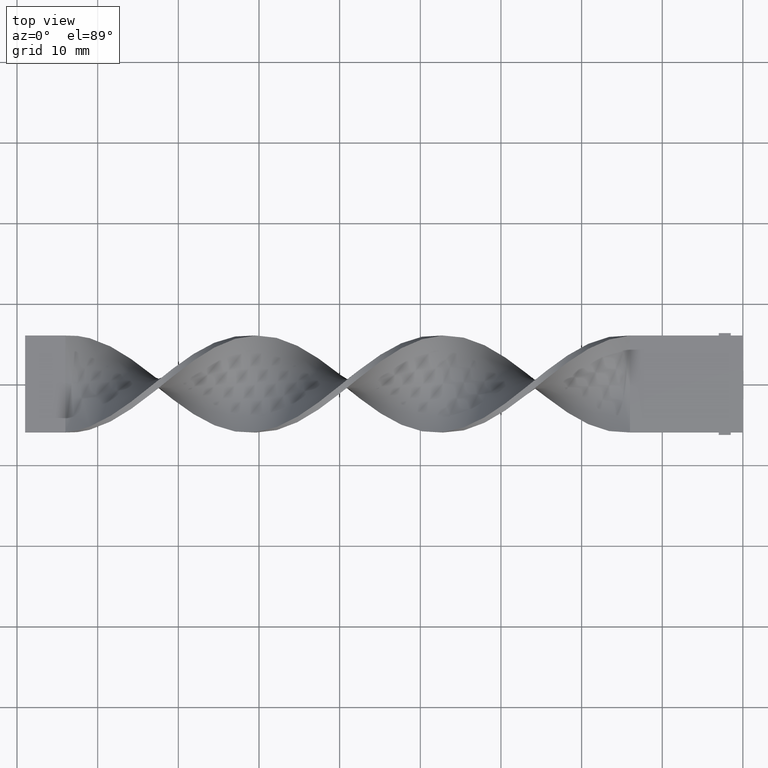
[diagram: clean part render]
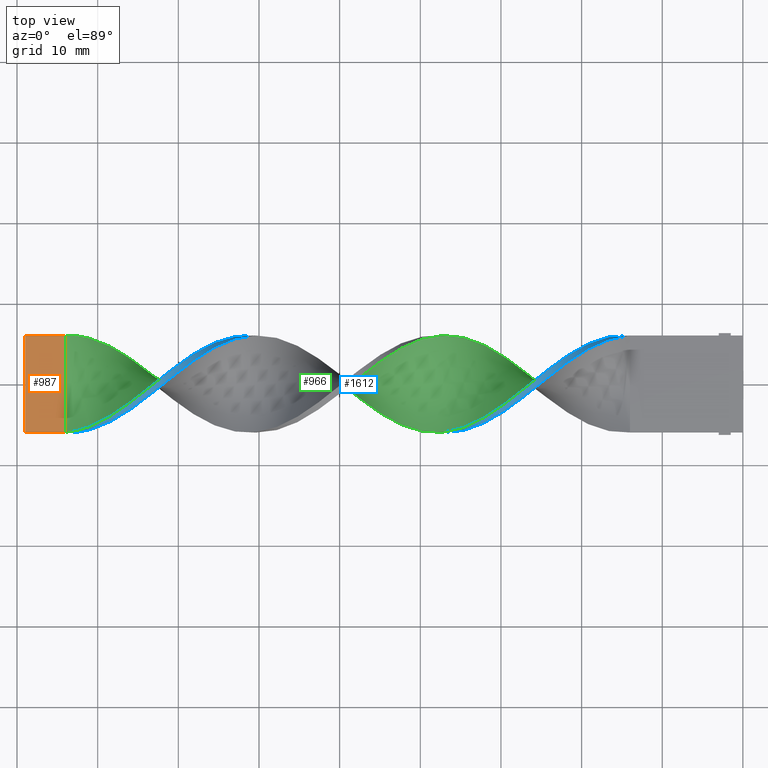
[diagram: same view with three faces highlighted in distinct colors, each labeled with its STEP entity id]
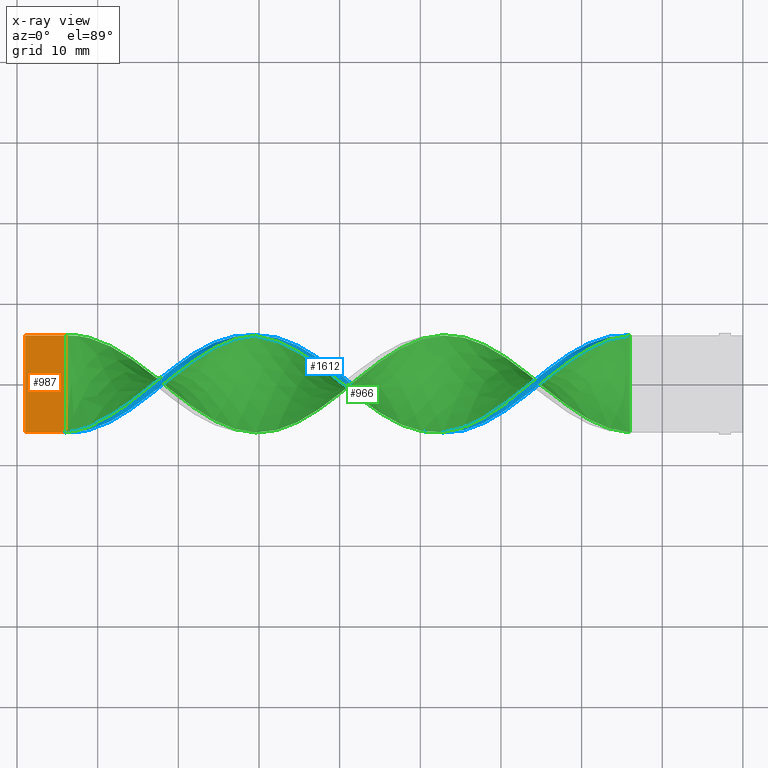
[diagram: x-ray of the same camera — body ghosted, the three highlighted faces saturated]
A machine part, top view with three faces highlighted in distinct colors.
The next image is the same camera in x-ray (body ghosted, the three faces saturated) — at least one of them is partly hidden behind the body in this view.
Their STEP definitions:

[orange] entity #987 — the highlighted planar face has unit normal (0, -0, -1).
#54 = DIRECTION ( 'NONE',  ( 1.000000000000000000, -0.000000000000000000, -0.000000000000000000 ) ) ;
#78 = CARTESIAN_POINT ( 'NONE',  ( -89.00000000000001421, 5.999999999999998224, 0.4999999999999992784 ) ) ;
#151 = CARTESIAN_POINT ( 'NONE',  ( -84.00000000000000000, 5.999999999999998224, 0.4999999999999992784 ) ) ;
#153 = EDGE_CURVE ( 'NONE', #414, #435, #728, .T. ) ;
#156 = B_SPLINE_CURVE_WITH_KNOTS ( 'NONE', 3,
 ( #1158, #259, #1393, #151 ),
 .UNSPECIFIED., .F., .F.,
 ( 4, 4 ),
 ( 0.000000000000000000, 1.000000000000000000 ),
 .UNSPECIFIED. ) ;
#167 = VERTEX_POINT ( 'NONE', #451 ) ;
#169 = CARTESIAN_POINT ( 'NONE',  ( -89.00000000000001421, -6.000000000000001776, 0.5000000000000007772 ) ) ;
#259 = CARTESIAN_POINT ( 'NONE',  ( -84.00000000000000000, -2.000000000000001776, 0.5000000000000002220 ) ) ;
#267 = VERTEX_POINT ( 'NONE', #352 ) ;
#285 = DIRECTION ( 'NONE',  ( 0.000000000000000000, -1.264902534566421675E-16, -1.000000000000000000 ) ) ;
#287 = CARTESIAN_POINT ( 'NONE',  ( -89.00000000000001421, 5.999999999999998224, 0.4999999999999992784 ) ) ;
#322 = LINE ( 'NONE', #169, #1273 ) ;
#352 = CARTESIAN_POINT ( 'NONE',  ( -84.00000000000000000, -6.000000000000001776, 0.5000000000000007772 ) ) ;
#367 = ORIENTED_EDGE ( 'NONE', *, *, #381, .F. ) ;
#381 = EDGE_CURVE ( 'NONE', #435, #167, #1434, .T. ) ;
#387 = ORIENTED_EDGE ( 'NONE', *, *, #909, .T. ) ;
#414 = VERTEX_POINT ( 'NONE', #1295 ) ;
#435 = VERTEX_POINT ( 'NONE', #287 ) ;
#451 = CARTESIAN_POINT ( 'NONE',  ( -84.00000000000000000, 5.999999999999998224, 0.4999999999999992784 ) ) ;
#546 = ORIENTED_EDGE ( 'NONE', *, *, #153, .F. ) ;
#549 = CARTESIAN_POINT ( 'NONE',  ( -89.00000000000001421, -6.000000000000001776, 0.5000000000000007772 ) ) ;
#723 = ORIENTED_EDGE ( 'NONE', *, *, #1125, .T. ) ;
#728 = LINE ( 'NONE', #840, #1298 ) ;
#840 = CARTESIAN_POINT ( 'NONE',  ( -89.00000000000001421, -6.000000000000001776, 0.5000000000000007772 ) ) ;
#847 = DIRECTION ( 'NONE',  ( 0.000000000000000000, 1.000000000000000000, -1.264902534566421675E-16 ) ) ;
#909 = EDGE_CURVE ( 'NONE', #267, #167, #156, .T. ) ;
#937 = DIRECTION ( 'NONE',  ( 1.000000000000000000, -0.000000000000000000, -0.000000000000000000 ) ) ;
#987 = ADVANCED_FACE ( 'NONE', ( #1305 ), #1563, .F. ) ;
#1125 = EDGE_CURVE ( 'NONE', #414, #267, #322, .T. ) ;
#1158 = CARTESIAN_POINT ( 'NONE',  ( -84.00000000000000000, -6.000000000000001776, 0.5000000000000007772 ) ) ;
#1194 = DIRECTION ( 'NONE',  ( 0.000000000000000000, 1.000000000000000000, -1.264902534566421675E-16 ) ) ;
#1215 = EDGE_LOOP ( 'NONE', ( #387, #367, #546, #723 ) ) ;
#1273 = VECTOR ( 'NONE', #937, 1000.000000000000000 ) ;
#1295 = CARTESIAN_POINT ( 'NONE',  ( -89.00000000000001421, -6.000000000000001776, 0.5000000000000007772 ) ) ;
#1298 = VECTOR ( 'NONE', #847, 1000.000000000000000 ) ;
#1305 = FACE_OUTER_BOUND ( 'NONE', #1215, .T. ) ;
#1393 = CARTESIAN_POINT ( 'NONE',  ( -84.00000000000000000, 1.999999999999998224, 0.4999999999999997780 ) ) ;
#1434 = LINE ( 'NONE', #78, #1483 ) ;
#1459 = AXIS2_PLACEMENT_3D ( 'NONE', #549, #285, #1194 ) ;
#1483 = VECTOR ( 'NONE', #54, 1000.000000000000000 ) ;
#1563 = PLANE ( 'NONE',  #1459 ) ;

[blue] entity #1612 — the highlighted face is a freeform B-spline surface patch.
#2 = CARTESIAN_POINT ( 'NONE',  ( -46.30769230769230660, -2.595137443597924864, -5.432795012591220107 ) ) ;
#4 = CARTESIAN_POINT ( 'NONE',  ( -13.99999999999999822, 5.999999999999998224, 0.5000000000000000000 ) ) ;
#5 = CARTESIAN_POINT ( 'NONE',  ( -84.00000000000000000, -6.000000000000001776, 0.1666666666666674346 ) ) ;
#7 = CARTESIAN_POINT ( 'NONE',  ( -41.82051282051281760, -4.688051999358556543, -3.847936200635249993 ) ) ;
#10 = CARTESIAN_POINT ( 'NONE',  ( -84.00000000000000000, -6.000000000000001776, -0.4999999999999992784 ) ) ;
#12 = CARTESIAN_POINT ( 'NONE',  ( -15.79487179487179205, 5.945308736700090080, 0.9504230770123205385 ) ) ;
#14 = CARTESIAN_POINT ( 'NONE',  ( -18.48717948717948545, 5.260288998093233914, 3.018907784180933973 ) ) ;
#18 = CARTESIAN_POINT ( 'NONE',  ( -84.00000000000000000, -6.000000000000001776, -0.4999999999999992784 ) ) ;
#37 = CARTESIAN_POINT ( 'NONE',  ( -21.17948717948717885, 2.996896547440105252, 5.221935568727515964 ) ) ;
#43 = CARTESIAN_POINT ( 'NONE',  ( -37.33333333333332860, -6.000000000000001776, 0.5000000000000007772 ) ) ;
#48 = CARTESIAN_POINT ( 'NONE',  ( -54.38461538461538680, 4.384962638200767593, -4.190053366537511259 ) ) ;
#53 = CARTESIAN_POINT ( 'NONE',  ( -73.23076923076924061, -0.2268656444829123819, 6.016521584715985860 ) ) ;
#57 = CARTESIAN_POINT ( 'NONE',  ( -73.23076923076924061, -0.2268656444829123819, 6.016521584715985860 ) ) ;
#58 = CARTESIAN_POINT ( 'NONE',  ( -42.71794871794872250, -4.159503159906211778, -4.352991323530320145 ) ) ;
#64 = CARTESIAN_POINT ( 'NONE',  ( -27.46153846153846345, -1.935476698729090783, 5.747901747727229171 ) ) ;
#66 = CARTESIAN_POINT ( 'NONE',  ( -31.05128205128205465, -4.384962638200773810, 4.190053366537507706 ) ) ;
#69 = CARTESIAN_POINT ( 'NONE',  ( -62.46153846153845990, 5.945308736700090080, 0.9504230770123205385 ) ) ;
#71 = CARTESIAN_POINT ( 'NONE',  ( -19.38461538461538325, 4.159503159906207337, 4.352991323530321033 ) ) ;
#73 = CARTESIAN_POINT ( 'NONE',  ( -70.53846153846153300, 0.9574036273986625822, 5.988975108237874601 ) ) ;
#77 = CARTESIAN_POINT ( 'NONE',  ( -47.20512820512820440, -1.935476698729091227, -5.747901747727229171 ) ) ;
#83 = CARTESIAN_POINT ( 'NONE',  ( -42.71794871794872250, -4.822625818147007415, -3.604480575359219063 ) ) ;
#87 = CARTESIAN_POINT ( 'NONE',  ( -82.20512820512820440, -5.945308736700091856, 0.9504230770123227590 ) ) ;
#105 = CARTESIAN_POINT ( 'NONE',  ( -16.69230769230769340, 5.829906481789051576, 1.672314254691077418 ) ) ;
#111 = CARTESIAN_POINT ( 'NONE',  ( -20.28205128205128460, 4.384962638200772922, 4.190053366537506818 ) ) ;
#122 = CARTESIAN_POINT ( 'NONE',  ( -60.66666666666666430, 5.999999999999998224, 0.5000000000000000000 ) ) ;
#124 = CARTESIAN_POINT ( 'NONE',  ( -43.61538461538461320, -4.384962638200776475, -4.190053366537505042 ) ) ;
#128 = CARTESIAN_POINT ( 'NONE',  ( -64.25641025641024839, 5.080374567897373517, 3.231067045089215828 ) ) ;
#130 = CARTESIAN_POINT ( 'NONE',  ( -55.28205128205128460, 4.159503159906204672, -4.352991323530323697 ) ) ;
#133 = EDGE_CURVE ( 'NONE', #1590, #1489, #229, .T. ) ;
#136 = CARTESIAN_POINT ( 'NONE',  ( -75.92307692307691980, -2.362838774426350152, 5.585824691029639411 ) ) ;
#141 = CARTESIAN_POINT ( 'NONE',  ( -30.15384615384615330, -2.996896547440108360, 5.221935568727516852 ) ) ;
#146 = CARTESIAN_POINT ( 'NONE',  ( -82.20512820512820440, -5.705993072412534950, 1.921364894438374549 ) ) ;
#150 = CARTESIAN_POINT ( 'NONE',  ( -70.53846153846153300, 0.9574036273986625822, 5.988975108237873712 ) ) ;
#154 = CARTESIAN_POINT ( 'NONE',  ( -84.00000000000000000, -6.000000000000001776, 0.5000000000000007772 ) ) ;
#160 = CARTESIAN_POINT ( 'NONE',  ( -33.74358974358974450, -5.080374567897376181, 3.231067045089216716 ) ) ;
#164 = CARTESIAN_POINT ( 'NONE',  ( -28.35897435897435770, -2.595137443597922200, 5.432795012591221884 ) ) ;
#170 = CARTESIAN_POINT ( 'NONE',  ( -19.38461538461538325, 4.822625818147002974, 3.604480575359219952 ) ) ;
#174 = CARTESIAN_POINT ( 'NONE',  ( -66.05128205128204399, 4.822625818147002974, 3.604480575359219952 ) ) ;
#175 = CARTESIAN_POINT ( 'NONE',  ( -68.74358974358973740, 2.362838774426346600, 5.585824691029639411 ) ) ;
#177 = ORIENTED_EDGE ( 'NONE', *, *, #212, .T. ) ;
#185 = CARTESIAN_POINT ( 'NONE',  ( -20.28205128205128460, 3.630954320453863904, 4.858046446425393405 ) ) ;
#189 = CARTESIAN_POINT ( 'NONE',  ( -76.82051282051281760, -2.996896547440108360, 5.221935568727516852 ) ) ;
#193 = CARTESIAN_POINT ( 'NONE',  ( -62.46153846153845990, 5.705993072412532285, 1.921364894438372550 ) ) ;
#196 = CARTESIAN_POINT ( 'NONE',  ( -77.71794871794872961, -3.630954320453864792, 4.858046446425394294 ) ) ;
#203 = CARTESIAN_POINT ( 'NONE',  ( -36.43589743589743790, -6.060710991611132137, 0.2285318993335658799 ) ) ;
#210 = CARTESIAN_POINT ( 'NONE',  ( -40.02564102564102200, -5.472697136436200260, -2.614197889543179887 ) ) ;
#212 = EDGE_CURVE ( 'NONE', #1590, #871, #461, .T. ) ;
#213 = CARTESIAN_POINT ( 'NONE',  ( -75.92307692307691980, -3.254798188466755171, 5.117688277455213708 ) ) ;
#214 = CARTESIAN_POINT ( 'NONE',  ( -13.99999999999999822, 5.999999999999998224, -0.5000000000000000000 ) ) ;
#227 = CARTESIAN_POINT ( 'NONE',  ( -35.53846153846153300, -5.705993072412534950, 1.921364894438374549 ) ) ;
#229 =( BOUNDED_CURVE ( )  B_SPLINE_CURVE ( 2, ( #4, #757, #1050, #689, #925, #1311, #433, #185, #37, #1183, #1059, #811, #318, #828, #679, #403, #164, #1539, #535, #66, #1559, #1030, #1329, #1570, #1528, #203, #1173, #916, #1409, #553, #563, #1548, #58, #668, #441, #943, #1162, #299, #422, #1438, #1419, #934, #309, #280, #802, #48, #791, #1319, #1429, #950, #412, #821, #1289, #544, #193, #290, #699, #1040, #1153, #1447, #1300, #175, #1191, #73, #574, #1068, #742, #1232, #480, #213, #1094, #709, #854, #1201, #1077, #1598, #87, #472, #601 ),
 .UNSPECIFIED., .F., .T. ) 
 B_SPLINE_CURVE_WITH_KNOTS ( ( 3, 2, 2, 2, 2, 2, 2, 2, 2, 2, 2, 2, 2, 2, 2, 2, 2, 2, 2, 2, 2, 2, 2, 2, 2, 2, 2, 2, 2, 2, 2, 2, 2, 2, 2, 2, 2, 2, 2, 3 ),
 ( 0.000000000000000000, 0.01923076923076923184, 0.03846153846153846367, 0.05769230769230768857, 0.07692307692307692735, 0.09615384615384615918, 0.1153846153846153771, 0.1346153846153846090, 0.1538461538461538547, 0.1730769230769230449, 0.1923076923076923184, 0.2115384615384615363, 0.2307692307692307543, 0.2500000000000000000, 0.2692307692307692180, 0.2884615384615384359, 0.3076923076923077094, 0.3269230769230769273, 0.3461538461538460898, 0.3653846153846153633, 0.3846153846153846367, 0.4038461538461539102, 0.4230769230769230727, 0.4423076923076922906, 0.4615384615384615086, 0.4807692307692307820, 0.5000000000000000000, 0.5192307692307692735, 0.5384615384615384359, 0.5576923076923077094, 0.5769230769230768718, 0.5961538461538461453, 0.6153846153846154188, 0.6346153846153845812, 0.6538461538461538547, 0.6730769230769230171, 0.6923076923076921796, 0.7115384615384615641, 0.7307692307692307265, 0.7500000000000000000 ),
 .UNSPECIFIED. ) 
 CURVE ( )  GEOMETRIC_REPRESENTATION_ITEM ( )  RATIONAL_B_SPLINE_CURVE ( ( 1.000000000000000000, 0.9927088740980539727, 1.000000000000000000, 0.9927088740980539727, 1.000000000000000000, 0.9927088740980539727, 1.000000000000000000, 0.9927088740980539727, 1.000000000000000000, 0.9927088740980539727, 1.000000000000000000, 0.9927088740980539727, 1.000000000000000000, 0.9927088740980539727, 1.000000000000000000, 0.9927088740980539727, 1.000000000000000000, 0.9927088740980539727, 1.000000000000000000, 0.9927088740980539727, 1.000000000000000000, 0.9927088740980539727, 1.000000000000000000, 0.9927088740980539727, 1.000000000000000000, 0.9927088740980539727, 1.000000000000000000, 0.9927088740980539727, 1.000000000000000000, 0.9927088740980539727, 1.000000000000000000, 0.9927088740980539727, 1.000000000000000000, 0.9927088740980539727, 1.000000000000000000, 0.9927088740980539727, 1.000000000000000000, 0.9927088740980539727, 1.000000000000000000, 0.9927088740980539727, 1.000000000000000000, 0.9927088740980539727, 1.000000000000000000, 0.9927088740980539727, 1.000000000000000000, 0.9927088740980539727, 1.000000000000000000, 0.9927088740980539727, 1.000000000000000000, 0.9927088740980539727, 1.000000000000000000, 0.9927088740980539727, 1.000000000000000000, 0.9927088740980539727, 1.000000000000000000, 0.9927088740980539727, 1.000000000000000000, 0.9927088740980539727, 1.000000000000000000, 0.9927088740980539727, 1.000000000000000000, 0.9927088740980539727, 1.000000000000000000, 0.9927088740980539727, 1.000000000000000000, 0.9927088740980539727, 1.000000000000000000, 0.9927088740980539727, 1.000000000000000000, 0.9927088740980539727, 1.000000000000000000, 0.9927088740980539727, 1.000000000000000000, 0.9927088740980539727, 1.000000000000000000, 0.9927088740980539727, 1.000000000000000000, 0.9927088740980539727, 1.000000000000000000 ) ) 
 REPRESENTATION_ITEM ( '' )  );
#238 = CARTESIAN_POINT ( 'NONE',  ( -34.64102564102564230, -5.472697136436198484, 2.614197889543184328 ) ) ;
#243 = CARTESIAN_POINT ( 'NONE',  ( -49.00000000000000711, 0.5036723384328384290, -6.044068061194097119 ) ) ;
#246 = CARTESIAN_POINT ( 'NONE',  ( -37.33333333333332860, -6.000000000000001776, 0.5000000000000007772 ) ) ;
#255 = CARTESIAN_POINT ( 'NONE',  ( -54.38461538461538680, 3.630954320453858575, -4.858046446425396070 ) ) ;
#260 = CARTESIAN_POINT ( 'NONE',  ( -57.07692307692307310, 5.080374567897371740, -3.231067045089219825 ) ) ;
#265 = CARTESIAN_POINT ( 'NONE',  ( -29.25641025641025905, -2.362838774426350152, 5.585824691029640299 ) ) ;
#267 = VERTEX_POINT ( 'NONE', #352 ) ;
#277 = CARTESIAN_POINT ( 'NONE',  ( -32.84615384615384670, -4.688051999358554767, 3.847936200635250437 ) ) ;
#280 = CARTESIAN_POINT ( 'NONE',  ( -52.58974358974359120, 3.254798188466748510, -5.117688277455216372 ) ) ;
#286 = CARTESIAN_POINT ( 'NONE',  ( -39.12820512820512420, -5.945308736700092744, -0.9504230770123185401 ) ) ;
#290 = CARTESIAN_POINT ( 'NONE',  ( -63.35897435897436480, 5.472697136436195819, 2.614197889543182107 ) ) ;
#295 = CARTESIAN_POINT ( 'NONE',  ( -13.99999999999999822, 5.999999999999998224, 0.5000000000000000000 ) ) ;
#299 = CARTESIAN_POINT ( 'NONE',  ( -47.20512820512820440, -0.9574036273986661350, -5.988975108237873712 ) ) ;
#304 = CARTESIAN_POINT ( 'NONE',  ( -50.79487179487178850, 0.9574036273986596957, -5.988975108237873712 ) ) ;
#307 = CARTESIAN_POINT ( 'NONE',  ( -21.17948717948717885, 2.996896547440105252, 5.221935568727515964 ) ) ;
#309 = CARTESIAN_POINT ( 'NONE',  ( -51.69230769230769340, 2.595137443597918647, -5.432795012591220996 ) ) ;
#318 = CARTESIAN_POINT ( 'NONE',  ( -24.76923076923076650, 0.2268656444829103280, 6.016521584715985860 ) ) ;
#323 = CARTESIAN_POINT ( 'NONE',  ( -51.69230769230769340, 1.660121200912504147, -5.787399899633757450 ) ) ;
#333 = CARTESIAN_POINT ( 'NONE',  ( -61.56410256410256920, 6.060710991611127696, 0.2285318993335631599 ) ) ;
#340 = CARTESIAN_POINT ( 'NONE',  ( -65.15384615384614619, 4.688051999358552102, 3.847936200635250437 ) ) ;
#346 = CARTESIAN_POINT ( 'NONE',  ( -40.02564102564102200, -5.829906481789055128, -1.672314254691075419 ) ) ;
#352 = CARTESIAN_POINT ( 'NONE',  ( -84.00000000000000000, -6.000000000000001776, 0.5000000000000007772 ) ) ;
#357 = CARTESIAN_POINT ( 'NONE',  ( -54.38461538461538680, 4.384962638200766705, -4.190053366537511259 ) ) ;
#359 = CARTESIAN_POINT ( 'NONE',  ( -33.74358974358974450, -5.080374567897376181, 3.231067045089216716 ) ) ;
#364 = CARTESIAN_POINT ( 'NONE',  ( -53.48717948717948900, 3.819880413333759606, -4.653870821996362039 ) ) ;
#370 = CARTESIAN_POINT ( 'NONE',  ( -59.76923076923077360, 6.060710991611127696, -0.2285318993335666293 ) ) ;
#373 = CARTESIAN_POINT ( 'NONE',  ( -50.79487179487178850, 0.9574036273986595846, -5.988975108237874601 ) ) ;
#378 = CARTESIAN_POINT ( 'NONE',  ( -83.10256410256410220, -6.060710991611131249, 0.2285318993335658799 ) ) ;
#380 = CARTESIAN_POINT ( 'NONE',  ( -66.94871794871795601, 4.384962638200772922, 4.190053366537506818 ) ) ;
#385 = CARTESIAN_POINT ( 'NONE',  ( -13.99999999999999822, 5.999999999999998224, -0.5000000000000000000 ) ) ;
#392 = CARTESIAN_POINT ( 'NONE',  ( -20.28205128205128460, 4.384962638200772034, 4.190053366537506818 ) ) ;
#400 = CARTESIAN_POINT ( 'NONE',  ( -26.56410256410256210, -0.2268656444829123819, 6.016521584715985860 ) ) ;
#403 = CARTESIAN_POINT ( 'NONE',  ( -27.46153846153846345, -1.935476698729090783, 5.747901747727229171 ) ) ;
#407 = CARTESIAN_POINT ( 'NONE',  ( -67.84615384615385381, 2.996896547440105252, 5.221935568727515964 ) ) ;
#412 = CARTESIAN_POINT ( 'NONE',  ( -58.87179487179486870, 5.945308736700089192, -0.9504230770123260896 ) ) ;
#422 = CARTESIAN_POINT ( 'NONE',  ( -48.10256410256410220, -0.2268656444829164898, -6.016521584715985860 ) ) ;
#426 = CARTESIAN_POINT ( 'NONE',  ( -64.25641025641024839, 5.545097739941142301, 2.345611019436005584 ) ) ;
#430 = CARTESIAN_POINT ( 'NONE',  ( -28.35897435897435770, -2.595137443597922200, 5.432795012591221884 ) ) ;
#433 = CARTESIAN_POINT ( 'NONE',  ( -19.38461538461538325, 4.159503159906207337, 4.352991323530321033 ) ) ;
#437 = CARTESIAN_POINT ( 'NONE',  ( -72.33333333333332860, 0.5036723384328398723, 6.044068061194097119 ) ) ;
#439 = CARTESIAN_POINT ( 'NONE',  ( -16.69230769230769695, 5.472697136436195819, 2.614197889543182107 ) ) ;
#441 = CARTESIAN_POINT ( 'NONE',  ( -44.51282051282051100, -2.996896547440109693, -5.221935568727515964 ) ) ;
#445 = CARTESIAN_POINT ( 'NONE',  ( -75.92307692307693401, -2.362838774426350152, 5.585824691029640299 ) ) ;
#450 = B_SPLINE_CURVE_WITH_KNOTS ( 'NONE', 3,
 ( #10, #638, #5, #1403 ),
 .UNSPECIFIED., .F., .F.,
 ( 4, 4 ),
 ( 0.000000000000000000, 1.000000000000000000 ),
 .UNSPECIFIED. ) ;
#455 = CARTESIAN_POINT ( 'NONE',  ( -53.48717948717948900, 2.996896547440103031, -5.221935568727517740 ) ) ;
#461 = LINE ( 'NONE', #1454, #1031 ) ;
#468 = CARTESIAN_POINT ( 'NONE',  ( -55.28205128205128460, 4.822625818147000309, -3.604480575359223060 ) ) ;
#472 = CARTESIAN_POINT ( 'NONE',  ( -83.10256410256410220, -6.060710991611132137, 0.2285318993335658799 ) ) ;
#478 = CARTESIAN_POINT ( 'NONE',  ( -50.79487179487178850, 1.935476698729085454, -5.747901747727230060 ) ) ;
#480 = CARTESIAN_POINT ( 'NONE',  ( -75.02564102564102200, -2.595137443597922200, 5.432795012591221884 ) ) ;
#481 = CARTESIAN_POINT ( 'NONE',  ( -42.71794871794872250, -4.822625818147007415, -3.604480575359219063 ) ) ;
#485 = CARTESIAN_POINT ( 'NONE',  ( -57.97435897435897090, 5.829906481789050687, -1.672314254691080526 ) ) ;
#487 = CARTESIAN_POINT ( 'NONE',  ( -27.46153846153846345, -0.9574036273986659129, 5.988975108237873712 ) ) ;
#492 = CARTESIAN_POINT ( 'NONE',  ( -83.10256410256410220, -5.939289008388871416, 1.228531899333566324 ) ) ;
#495 = CARTESIAN_POINT ( 'NONE',  ( -43.61538461538461320, -3.630954320453868345, -4.858046446425391629 ) ) ;
#498 = CARTESIAN_POINT ( 'NONE',  ( -49.89743589743589069, 0.2268656444829048879, -6.016521584715984972 ) ) ;
#504 = CARTESIAN_POINT ( 'NONE',  ( -13.99999999999999822, 5.999999999999998224, -0.5000000000000000000 ) ) ;
#509 = CARTESIAN_POINT ( 'NONE',  ( -18.48717948717948545, 5.260288998093233914, 3.018907784180934417 ) ) ;
#511 = CARTESIAN_POINT ( 'NONE',  ( -47.20512820512820440, -1.935476698729091227, -5.747901747727229171 ) ) ;
#519 = CARTESIAN_POINT ( 'NONE',  ( -80.41025641025640880, -5.080374567897376181, 3.231067045089216716 ) ) ;
#524 = CARTESIAN_POINT ( 'NONE',  ( -66.05128205128204399, 4.159503159906207337, 4.352991323530321033 ) ) ;
#531 = CARTESIAN_POINT ( 'NONE',  ( -76.82051282051281760, -3.819880413333764491, 4.653870821996361151 ) ) ;
#534 = CARTESIAN_POINT ( 'NONE',  ( -76.82051282051281760, -2.996896547440108360, 5.221935568727516852 ) ) ;
#535 = CARTESIAN_POINT ( 'NONE',  ( -30.15384615384615330, -3.819880413333764491, 4.653870821996361151 ) ) ;
#544 = CARTESIAN_POINT ( 'NONE',  ( -61.56410256410256920, 5.939289008388867863, 1.228531899333562993 ) ) ;
#553 = CARTESIAN_POINT ( 'NONE',  ( -40.02564102564102200, -5.472697136436200260, -2.614197889543179887 ) ) ;
#557 = CARTESIAN_POINT ( 'NONE',  ( -67.84615384615385381, 3.819880413333761826, 4.653870821996360263 ) ) ;
#560 = CARTESIAN_POINT ( 'NONE',  ( -23.87179487179487580, 0.9574036273986625822, 5.988975108237873712 ) ) ;
#563 = CARTESIAN_POINT ( 'NONE',  ( -40.92307692307691980, -5.080374567897377069, -3.231067045089215828 ) ) ;
#564 = CARTESIAN_POINT ( 'NONE',  ( -84.00000000000000000, -6.000000000000001776, -0.4999999999999992784 ) ) ;
#573 = EDGE_CURVE ( 'NONE', #871, #267, #1238, .T. ) ;
#574 = CARTESIAN_POINT ( 'NONE',  ( -71.43589743589743080, 0.2268656444829103280, 6.016521584715985860 ) ) ;
#578 = CARTESIAN_POINT ( 'NONE',  ( -79.51282051282051100, -4.688051999358554767, 3.847936200635250437 ) ) ;
#587 = CARTESIAN_POINT ( 'NONE',  ( -65.15384615384614619, 5.260288998093233914, 3.018907784180934417 ) ) ;
#590 = CARTESIAN_POINT ( 'NONE',  ( -24.76923076923076650, 0.2268656444829103280, 6.016521584715985860 ) ) ;
#598 = CARTESIAN_POINT ( 'NONE',  ( -15.79487179487179205, 5.705993072412532285, 1.921364894438372550 ) ) ;
#601 = CARTESIAN_POINT ( 'NONE',  ( -84.00000000000000000, -6.000000000000001776, -0.4999999999999992784 ) ) ;
#609 = CARTESIAN_POINT ( 'NONE',  ( -42.71794871794872250, -4.159503159906211778, -4.352991323530320145 ) ) ;
#612 = CARTESIAN_POINT ( 'NONE',  ( -26.56410256410256210, -0.2268656444829123819, 6.016521584715985860 ) ) ;
#626 = CARTESIAN_POINT ( 'NONE',  ( -40.92307692307691980, -5.545097739941144965, -2.345611019436005584 ) ) ;
#630 = CARTESIAN_POINT ( 'NONE',  ( -62.46153846153845990, 5.705993072412532285, 1.921364894438372550 ) ) ;
#632 = CARTESIAN_POINT ( 'NONE',  ( -44.51282051282051100, -3.819880413333765823, -4.653870821996360263 ) ) ;
#636 = CARTESIAN_POINT ( 'NONE',  ( -22.97435897435897090, 2.595137443597919980, 5.432795012591220107 ) ) ;
#638 = CARTESIAN_POINT ( 'NONE',  ( -84.00000000000000000, -6.000000000000001776, -0.1666666666666659358 ) ) ;
#640 = CARTESIAN_POINT ( 'NONE',  ( -66.94871794871794179, 3.630954320453863904, 4.858046446425393405 ) ) ;
#649 = CARTESIAN_POINT ( 'NONE',  ( -83.10256410256410220, -5.939289008388871416, 1.228531899333566102 ) ) ;
#654 = CARTESIAN_POINT ( 'NONE',  ( -72.33333333333332860, -0.5036723384328430919, 6.044068061194097119 ) ) ;
#663 = CARTESIAN_POINT ( 'NONE',  ( -77.71794871794872961, -4.384962638200772922, 4.190053366537507706 ) ) ;
#667 = CARTESIAN_POINT ( 'NONE',  ( -68.74358974358973740, 3.254798188466752062, 5.117688277455213708 ) ) ;
#668 = CARTESIAN_POINT ( 'NONE',  ( -43.61538461538461320, -3.630954320453868345, -4.858046446425391629 ) ) ;
#671 = ORIENTED_EDGE ( 'NONE', *, *, #573, .T. ) ;
#674 = CARTESIAN_POINT ( 'NONE',  ( -58.87179487179486870, 5.705993072412529621, -1.921364894438377879 ) ) ;
#678 = CARTESIAN_POINT ( 'NONE',  ( -77.71794871794874382, -3.630954320453864792, 4.858046446425394294 ) ) ;
#679 = CARTESIAN_POINT ( 'NONE',  ( -26.56410256410256210, -1.219574518580966549, 5.895984904460662257 ) ) ;
#684 = CARTESIAN_POINT ( 'NONE',  ( -59.76923076923077360, 5.939289008388867863, -1.228531899333566990 ) ) ;
#687 = CARTESIAN_POINT ( 'NONE',  ( -17.58974358974358765, 5.080374567897373517, 3.231067045089215828 ) ) ;
#689 = CARTESIAN_POINT ( 'NONE',  ( -16.69230769230769340, 5.472697136436195819, 2.614197889543182107 ) ) ;
#693 = CARTESIAN_POINT ( 'NONE',  ( -48.10256410256410220, -1.219574518580970546, -5.895984904460662257 ) ) ;
#699 = CARTESIAN_POINT ( 'NONE',  ( -64.25641025641024839, 5.080374567897373517, 3.231067045089215828 ) ) ;
#702 = CARTESIAN_POINT ( 'NONE',  ( -45.41025641025640880, -3.254798188466758280, -5.117688277455211932 ) ) ;
#709 = CARTESIAN_POINT ( 'NONE',  ( -77.71794871794874382, -4.384962638200773810, 4.190053366537507706 ) ) ;
#714 = CARTESIAN_POINT ( 'NONE',  ( -49.89743589743589069, 0.2268656444829048879, -6.016521584715984972 ) ) ;
#717 = CARTESIAN_POINT ( 'NONE',  ( -36.43589743589743790, -6.060710991611131249, 0.2285318993335658799 ) ) ;
#721 = CARTESIAN_POINT ( 'NONE',  ( -14.89743589743589602, 6.060710991611128584, 0.2285318993335631599 ) ) ;
#726 = CARTESIAN_POINT ( 'NONE',  ( -22.07692307692308376, 2.362838774426347044, 5.585824691029640299 ) ) ;
#734 = CARTESIAN_POINT ( 'NONE',  ( -81.30769230769233502, -5.472697136436198484, 2.614197889543184328 ) ) ;
#738 = CARTESIAN_POINT ( 'NONE',  ( -21.17948717948717885, 3.819880413333761826, 4.653870821996360263 ) ) ;
#742 = CARTESIAN_POINT ( 'NONE',  ( -73.23076923076924061, -1.219574518580966549, 5.895984904460662257 ) ) ;
#743 = CARTESIAN_POINT ( 'NONE',  ( -17.58974358974358765, 5.545097739941142301, 2.345611019436005584 ) ) ;
#750 = CARTESIAN_POINT ( 'NONE',  ( -31.05128205128205465, -3.630954320453864792, 4.858046446425394294 ) ) ;
#752 = EDGE_LOOP ( 'NONE', ( #177, #671, #1185, #1264 ) ) ;
#757 = CARTESIAN_POINT ( 'NONE',  ( -14.89743589743589602, 5.939289008388867863, 1.228531899333562993 ) ) ;
#760 = CARTESIAN_POINT ( 'NONE',  ( -61.56410256410256920, 5.939289008388867863, 1.228531899333563215 ) ) ;
#766 = CARTESIAN_POINT ( 'NONE',  ( -22.07692307692308376, 3.254798188466752062, 5.117688277455213708 ) ) ;
#768 = CARTESIAN_POINT ( 'NONE',  ( -64.25641025641024839, 5.545097739941142301, 2.345611019436005584 ) ) ;
#773 = CARTESIAN_POINT ( 'NONE',  ( -22.97435897435897090, 2.595137443597919980, 5.432795012591220107 ) ) ;
#787 = CARTESIAN_POINT ( 'NONE',  ( -28.35897435897435770, -1.660121200912507700, 5.787399899633756561 ) ) ;
#791 = CARTESIAN_POINT ( 'NONE',  ( -55.28205128205128460, 4.822625818147000309, -3.604480575359223060 ) ) ;
#796 = CARTESIAN_POINT ( 'NONE',  ( -75.92307692307693401, -3.254798188466755615, 5.117688277455213708 ) ) ;
#802 = CARTESIAN_POINT ( 'NONE',  ( -53.48717948717948900, 3.819880413333759606, -4.653870821996362039 ) ) ;
#806 = CARTESIAN_POINT ( 'NONE',  ( -40.92307692307691980, -5.545097739941144965, -2.345611019436005584 ) ) ;
#809 = CARTESIAN_POINT ( 'NONE',  ( -18.48717948717948545, 4.688051999358552102, 3.847936200635250437 ) ) ;
#811 = CARTESIAN_POINT ( 'NONE',  ( -23.87179487179487580, 0.9574036273986625822, 5.988975108237874601 ) ) ;
#816 = CARTESIAN_POINT ( 'NONE',  ( -57.07692307692307310, 5.080374567897371740, -3.231067045089219825 ) ) ;
#819 = CARTESIAN_POINT ( 'NONE',  ( -25.66666666666666785, -0.5036723384328430919, 6.044068061194097119 ) ) ;
#821 = CARTESIAN_POINT ( 'NONE',  ( -59.76923076923076650, 6.060710991611128584, -0.2285318993335666293 ) ) ;
#824 = CARTESIAN_POINT ( 'NONE',  ( -46.30769230769230660, -2.595137443597924864, -5.432795012591220107 ) ) ;
#828 = CARTESIAN_POINT ( 'NONE',  ( -25.66666666666666785, -0.5036723384328430919, 6.044068061194097119 ) ) ;
#838 = CARTESIAN_POINT ( 'NONE',  ( -22.97435897435897090, 1.660121200912505479, 5.787399899633756561 ) ) ;
#843 = CARTESIAN_POINT ( 'NONE',  ( -69.64102564102564941, 2.595137443597919980, 5.432795012591220107 ) ) ;
#854 = CARTESIAN_POINT ( 'NONE',  ( -78.61538461538461320, -4.822625818147004750, 3.604480575359222172 ) ) ;
#855 = CARTESIAN_POINT ( 'NONE',  ( -53.48717948717948900, 2.996896547440103031, -5.221935568727517740 ) ) ;
#863 = CARTESIAN_POINT ( 'NONE',  ( -23.87179487179487580, 1.935476698729087897, 5.747901747727228283 ) ) ;
#868 = CARTESIAN_POINT ( 'NONE',  ( -58.87179487179486870, 5.945308736700089192, -0.9504230770123260896 ) ) ;
#871 = VERTEX_POINT ( 'NONE', #504 ) ;
#873 = CARTESIAN_POINT ( 'NONE',  ( -56.17948717948717530, 5.260288998093233026, -3.018907784180936194 ) ) ;
#875 = CARTESIAN_POINT ( 'NONE',  ( -25.66666666666666785, 0.5036723384328399833, 6.044068061194097119 ) ) ;
#883 = CARTESIAN_POINT ( 'NONE',  ( -49.00000000000000000, -0.5036723384328446462, -6.044068061194097119 ) ) ;
#888 = CARTESIAN_POINT ( 'NONE',  ( -78.61538461538461320, -4.822625818147004750, 3.604480575359222172 ) ) ;
#891 = CARTESIAN_POINT ( 'NONE',  ( -71.43589743589743080, 1.219574518580964329, 5.895984904460662257 ) ) ;
#895 = CARTESIAN_POINT ( 'NONE',  ( -73.23076923076924061, -1.219574518580966549, 5.895984904460662257 ) ) ;
#905 = CARTESIAN_POINT ( 'NONE',  ( -70.53846153846153300, 1.935476698729087897, 5.747901747727228283 ) ) ;
#912 = CARTESIAN_POINT ( 'NONE',  ( -31.05128205128205821, -3.630954320453864792, 4.858046446425394294 ) ) ;
#915 = CARTESIAN_POINT ( 'NONE',  ( -57.97435897435897090, 5.472697136436194931, -2.614197889543184772 ) ) ;
#916 = CARTESIAN_POINT ( 'NONE',  ( -38.23076923076922640, -5.939289008388871416, -1.228531899333561661 ) ) ;
#921 = CARTESIAN_POINT ( 'NONE',  ( -36.43589743589743790, -5.939289008388871416, 1.228531899333566324 ) ) ;
#925 = CARTESIAN_POINT ( 'NONE',  ( -17.58974358974358765, 5.080374567897373517, 3.231067045089215828 ) ) ;
#934 = CARTESIAN_POINT ( 'NONE',  ( -50.79487179487178850, 1.935476698729085232, -5.747901747727230060 ) ) ;
#938 = CARTESIAN_POINT ( 'NONE',  ( -75.02564102564102200, -1.660121200912507700, 5.787399899633756561 ) ) ;
#941 = CARTESIAN_POINT ( 'NONE',  ( -29.25641025641025905, -3.254798188466755615, 5.117688277455213708 ) ) ;
#943 = CARTESIAN_POINT ( 'NONE',  ( -45.41025641025640880, -2.362838774426354593, -5.585824691029637634 ) ) ;
#947 = CARTESIAN_POINT ( 'NONE',  ( -78.61538461538461320, -4.159503159906209113, 4.352991323530322809 ) ) ;
#948 = CARTESIAN_POINT ( 'NONE',  ( -34.64102564102564230, -5.829906481789053352, 1.672314254691079860 ) ) ;
#950 = CARTESIAN_POINT ( 'NONE',  ( -57.97435897435897090, 5.829906481789050687, -1.672314254691080304 ) ) ;
#955 = CARTESIAN_POINT ( 'NONE',  ( -40.02564102564102200, -5.829906481789054240, -1.672314254691075419 ) ) ;
#965 = CARTESIAN_POINT ( 'NONE',  ( -84.00000000000000000, -6.000000000000001776, 0.5000000000000007772 ) ) ;
#970 = FACE_OUTER_BOUND ( 'NONE', #752, .T. ) ;
#983 = CARTESIAN_POINT ( 'NONE',  ( -82.20512820512820440, -5.705993072412534950, 1.921364894438374549 ) ) ;
#995 = CARTESIAN_POINT ( 'NONE',  ( -49.89743589743589069, 1.219574518580958999, -5.895984904460663145 ) ) ;
#1012 = CARTESIAN_POINT ( 'NONE',  ( -81.30769230769232081, -5.472697136436198484, 2.614197889543184328 ) ) ;
#1017 = CARTESIAN_POINT ( 'NONE',  ( -71.43589743589743080, 0.2268656444829103280, 6.016521584715985860 ) ) ;
#1020 = CARTESIAN_POINT ( 'NONE',  ( -67.84615384615385381, 3.819880413333761826, 4.653870821996360263 ) ) ;
#1026 = CARTESIAN_POINT ( 'NONE',  ( -81.30769230769233502, -5.829906481789053352, 1.672314254691079860 ) ) ;
#1030 = CARTESIAN_POINT ( 'NONE',  ( -32.84615384615384670, -5.260288998093236579, 3.018907784180935305 ) ) ;
#1031 = VECTOR ( 'NONE', #1087, 1000.000000000000000 ) ;
#1035 = CARTESIAN_POINT ( 'NONE',  ( -38.23076923076922640, -6.060710991611131249, -0.2285318993335618554 ) ) ;
#1040 = CARTESIAN_POINT ( 'NONE',  ( -65.15384615384614619, 4.688051999358552102, 3.847936200635250437 ) ) ;
#1050 = CARTESIAN_POINT ( 'NONE',  ( -15.79487179487179205, 5.705993072412532285, 1.921364894438372550 ) ) ;
#1059 = CARTESIAN_POINT ( 'NONE',  ( -22.97435897435897090, 1.660121200912505479, 5.787399899633756561 ) ) ;
#1062 = CARTESIAN_POINT ( 'NONE',  ( -60.66666666666666430, 5.999999999999998224, -0.5000000000000000000 ) ) ;
#1065 = CARTESIAN_POINT ( 'NONE',  ( -37.33333333333332860, -6.000000000000001776, -0.4999999999999992784 ) ) ;
#1068 = CARTESIAN_POINT ( 'NONE',  ( -72.33333333333332860, -0.5036723384328430919, 6.044068061194097119 ) ) ;
#1072 = CARTESIAN_POINT ( 'NONE',  ( -80.41025641025640880, -5.080374567897376181, 3.231067045089216716 ) ) ;
#1077 = CARTESIAN_POINT ( 'NONE',  ( -80.41025641025640880, -5.545097739941144077, 2.345611019436007361 ) ) ;
#1083 = CARTESIAN_POINT ( 'NONE',  ( -66.05128205128204399, 4.822625818147002974, 3.604480575359219952 ) ) ;
#1085 = CARTESIAN_POINT ( 'NONE',  ( -30.15384615384615330, -3.819880413333764491, 4.653870821996361151 ) ) ;
#1087 = DIRECTION ( 'NONE',  ( -0.000000000000000000, -0.000000000000000000, -1.000000000000000000 ) ) ;
#1092 = CARTESIAN_POINT ( 'NONE',  ( -20.28205128205128460, 3.630954320453863904, 4.858046446425393405 ) ) ;
#1094 = CARTESIAN_POINT ( 'NONE',  ( -76.82051282051281760, -3.819880413333764491, 4.653870821996361151 ) ) ;
#1100 = CARTESIAN_POINT ( 'NONE',  ( -44.51282051282051100, -2.996896547440109693, -5.221935568727515964 ) ) ;
#1104 = CARTESIAN_POINT ( 'NONE',  ( -41.82051282051281760, -5.260288998093238355, -3.018907784180933529 ) ) ;
#1109 = CARTESIAN_POINT ( 'NONE',  ( -47.20512820512820440, -0.9574036273986661350, -5.988975108237873712 ) ) ;
#1116 = CARTESIAN_POINT ( 'NONE',  ( -45.41025641025640880, -3.254798188466758280, -5.117688277455211932 ) ) ;
#1120 = CARTESIAN_POINT ( 'NONE',  ( -52.58974358974358410, 3.254798188466748954, -5.117688277455216372 ) ) ;
#1122 = CARTESIAN_POINT ( 'NONE',  ( -48.10256410256410220, -1.219574518580970546, -5.895984904460662257 ) ) ;
#1127 = CARTESIAN_POINT ( 'NONE',  ( -23.87179487179487580, 1.935476698729087675, 5.747901747727228283 ) ) ;
#1129 = CARTESIAN_POINT ( 'NONE',  ( -56.17948717948717530, 4.688051999358551214, -3.847936200635251325 ) ) ;
#1133 = CARTESIAN_POINT ( 'NONE',  ( -69.64102564102564941, 1.660121200912505479, 5.787399899633756561 ) ) ;
#1136 = CARTESIAN_POINT ( 'NONE',  ( -59.76923076923076650, 5.939289008388867863, -1.228531899333566768 ) ) ;
#1144 = CARTESIAN_POINT ( 'NONE',  ( -69.64102564102564941, 2.595137443597919980, 5.432795012591220107 ) ) ;
#1148 = CARTESIAN_POINT ( 'NONE',  ( -74.12820512820512420, -1.935476698729090783, 5.747901747727229171 ) ) ;
#1153 = CARTESIAN_POINT ( 'NONE',  ( -66.05128205128204399, 4.159503159906207337, 4.352991323530321033 ) ) ;
#1157 = CARTESIAN_POINT ( 'NONE',  ( -35.53846153846153300, -5.705993072412534950, 1.921364894438374549 ) ) ;
#1162 = CARTESIAN_POINT ( 'NONE',  ( -46.30769230769230660, -1.660121200912510142, -5.787399899633756561 ) ) ;
#1168 = CARTESIAN_POINT ( 'NONE',  ( -70.53846153846153300, 1.935476698729087675, 5.747901747727228283 ) ) ;
#1172 = CARTESIAN_POINT ( 'NONE',  ( -60.66666666666666430, 5.999999999999998224, -0.5000000000000000000 ) ) ;
#1173 = CARTESIAN_POINT ( 'NONE',  ( -37.33333333333332860, -6.000000000000001776, -0.4999999999999992784 ) ) ;
#1178 = CARTESIAN_POINT ( 'NONE',  ( -49.00000000000000711, -0.5036723384328445352, -6.044068061194097119 ) ) ;
#1180 = CARTESIAN_POINT ( 'NONE',  ( -26.56410256410256210, -1.219574518580966549, 5.895984904460662257 ) ) ;
#1183 = CARTESIAN_POINT ( 'NONE',  ( -22.07692307692308020, 2.362838774426346600, 5.585824691029639411 ) ) ;
#1185 = ORIENTED_EDGE ( 'NONE', *, *, #1200, .F. ) ;
#1189 = CARTESIAN_POINT ( 'NONE',  ( -35.53846153846153300, -5.945308736700091856, 0.9504230770123227590 ) ) ;
#1191 = CARTESIAN_POINT ( 'NONE',  ( -69.64102564102564941, 1.660121200912505479, 5.787399899633756561 ) ) ;
#1200 = EDGE_CURVE ( 'NONE', #1489, #267, #450, .T. ) ;
#1201 = CARTESIAN_POINT ( 'NONE',  ( -79.51282051282051100, -5.260288998093236579, 3.018907784180935305 ) ) ;
#1206 = CARTESIAN_POINT ( 'NONE',  ( -55.28205128205128460, 4.159503159906204672, -4.352991323530323697 ) ) ;
#1210 = CARTESIAN_POINT ( 'NONE',  ( -40.92307692307691980, -5.080374567897377069, -3.231067045089215828 ) ) ;
#1213 = CARTESIAN_POINT ( 'NONE',  ( -15.79487179487179205, 5.945308736700090080, 0.9504230770123205385 ) ) ;
#1219 =( BOUNDED_SURFACE ( )  B_SPLINE_SURFACE ( 1, 2, ( 
 ( #1343, #1426, #598, #439, #687, #809, #71, #1092, #307, #726, #838, #560, #590, #819, #1180, #64, #430, #941, #1085, #1436, #1336, #1221, #1317, #948, #1189, #717, #1065, #1445, #1463, #210, #1210, #7, #609, #495, #1100, #1256, #1602, #1109, #1470, #243, #995, #478, #1610, #1120, #364, #357, #468, #873, #1249, #485, #868, #370, #122, #760, #630, #1377, #128, #340, #524, #640, #407, #1277, #1133, #150, #1017, #654, #895, #1148, #1392, #796, #531, #663, #888, #1269, #1397, #1026, #1517, #378, #18 ),
 ( #385, #1524, #12, #1294, #1534, #509, #170, #392, #1384, #766, #773, #1127, #1510, #1414, #400, #1261, #787, #265, #141, #912, #1406, #277, #160, #1284, #1157, #921, #43, #1035, #286, #955, #806, #1424, #83, #1307, #1433, #702, #824, #77, #693, #1178, #714, #304, #323, #1322, #455, #1333, #1206, #1443, #816, #1564, #674, #684, #1062, #333, #69, #1461, #426, #587, #1083, #1573, #557, #1314, #843, #1168, #1553, #437, #53, #1544, #938, #445, #189, #196, #947, #578, #1072, #734, #983, #492, #965 ) ),
 .UNSPECIFIED., .F., .F., .F. ) 
 B_SPLINE_SURFACE_WITH_KNOTS ( ( 2, 2 ),
 ( 3, 2, 2, 2, 2, 2, 2, 2, 2, 2, 2, 2, 2, 2, 2, 2, 2, 2, 2, 2, 2, 2, 2, 2, 2, 2, 2, 2, 2, 2, 2, 2, 2, 2, 2, 2, 2, 2, 2, 3 ),
 ( 0.000000000000000000, 1.000000000000000000 ),
 ( 0.000000000000000000, 0.01923076923076923184, 0.03846153846153846367, 0.05769230769230769551, 0.07692307692307692735, 0.09615384615384615918, 0.1153846153846153910, 0.1346153846153846090, 0.1538461538461538547, 0.1730769230769230727, 0.1923076923076923184, 0.2115384615384615363, 0.2307692307692307820, 0.2500000000000000000, 0.2692307692307692180, 0.2884615384615384359, 0.3076923076923077094, 0.3269230769230769273, 0.3461538461538461453, 0.3653846153846153633, 0.3846153846153846367, 0.4038461538461538547, 0.4230769230769230727, 0.4423076923076922906, 0.4615384615384615641, 0.4807692307692307820, 0.5000000000000000000, 0.5192307692307692735, 0.5384615384615384359, 0.5576923076923077094, 0.5769230769230768718, 0.5961538461538461453, 0.6153846153846154188, 0.6346153846153845812, 0.6538461538461538547, 0.6730769230769231282, 0.6923076923076922906, 0.7115384615384615641, 0.7307692307692307265, 0.7500000000000000000 ),
 .UNSPECIFIED. ) 
 GEOMETRIC_REPRESENTATION_ITEM ( )  RATIONAL_B_SPLINE_SURFACE ( (
 ( 1.000000000000000000, 0.9927088740980539727, 1.000000000000000000, 0.9927088740980539727, 1.000000000000000000, 0.9927088740980539727, 1.000000000000000000, 0.9927088740980539727, 1.000000000000000000, 0.9927088740980539727, 1.000000000000000000, 0.9927088740980539727, 1.000000000000000000, 0.9927088740980539727, 1.000000000000000000, 0.9927088740980539727, 1.000000000000000000, 0.9927088740980539727, 1.000000000000000000, 0.9927088740980539727, 1.000000000000000000, 0.9927088740980539727, 1.000000000000000000, 0.9927088740980539727, 1.000000000000000000, 0.9927088740980539727, 1.000000000000000000, 0.9927088740980539727, 1.000000000000000000, 0.9927088740980539727, 1.000000000000000000, 0.9927088740980539727, 1.000000000000000000, 0.9927088740980539727, 1.000000000000000000, 0.9927088740980539727, 1.000000000000000000, 0.9927088740980539727, 1.000000000000000000, 0.9927088740980539727, 1.000000000000000000, 0.9927088740980539727, 1.000000000000000000, 0.9927088740980539727, 1.000000000000000000, 0.9927088740980539727, 1.000000000000000000, 0.9927088740980539727, 1.000000000000000000, 0.9927088740980539727, 1.000000000000000000, 0.9927088740980539727, 1.000000000000000000, 0.9927088740980539727, 1.000000000000000000, 0.9927088740980539727, 1.000000000000000000, 0.9927088740980539727, 1.000000000000000000, 0.9927088740980539727, 1.000000000000000000, 0.9927088740980539727, 1.000000000000000000, 0.9927088740980539727, 1.000000000000000000, 0.9927088740980539727, 1.000000000000000000, 0.9927088740980539727, 1.000000000000000000, 0.9927088740980539727, 1.000000000000000000, 0.9927088740980539727, 1.000000000000000000, 0.9927088740980539727, 1.000000000000000000, 0.9927088740980539727, 1.000000000000000000, 0.9927088740980539727, 1.000000000000000000),
 ( 1.000000000000000000, 0.9927088740980539727, 1.000000000000000000, 0.9927088740980539727, 1.000000000000000000, 0.9927088740980539727, 1.000000000000000000, 0.9927088740980539727, 1.000000000000000000, 0.9927088740980539727, 1.000000000000000000, 0.9927088740980539727, 1.000000000000000000, 0.9927088740980539727, 1.000000000000000000, 0.9927088740980539727, 1.000000000000000000, 0.9927088740980539727, 1.000000000000000000, 0.9927088740980539727, 1.000000000000000000, 0.9927088740980539727, 1.000000000000000000, 0.9927088740980539727, 1.000000000000000000, 0.9927088740980539727, 1.000000000000000000, 0.9927088740980539727, 1.000000000000000000, 0.9927088740980539727, 1.000000000000000000, 0.9927088740980539727, 1.000000000000000000, 0.9927088740980539727, 1.000000000000000000, 0.9927088740980539727, 1.000000000000000000, 0.9927088740980539727, 1.000000000000000000, 0.9927088740980539727, 1.000000000000000000, 0.9927088740980539727, 1.000000000000000000, 0.9927088740980539727, 1.000000000000000000, 0.9927088740980539727, 1.000000000000000000, 0.9927088740980539727, 1.000000000000000000, 0.9927088740980539727, 1.000000000000000000, 0.9927088740980539727, 1.000000000000000000, 0.9927088740980539727, 1.000000000000000000, 0.9927088740980539727, 1.000000000000000000, 0.9927088740980539727, 1.000000000000000000, 0.9927088740980539727, 1.000000000000000000, 0.9927088740980539727, 1.000000000000000000, 0.9927088740980539727, 1.000000000000000000, 0.9927088740980539727, 1.000000000000000000, 0.9927088740980539727, 1.000000000000000000, 0.9927088740980539727, 1.000000000000000000, 0.9927088740980539727, 1.000000000000000000, 0.9927088740980539727, 1.000000000000000000, 0.9927088740980539727, 1.000000000000000000, 0.9927088740980539727, 1.000000000000000000) ) ) 
 REPRESENTATION_ITEM ( '' )  SURFACE ( )  );
#1221 = CARTESIAN_POINT ( 'NONE',  ( -32.84615384615384670, -5.260288998093236579, 3.018907784180935749 ) ) ;
#1232 = CARTESIAN_POINT ( 'NONE',  ( -74.12820512820510999, -1.935476698729090783, 5.747901747727229171 ) ) ;
#1233 = CARTESIAN_POINT ( 'NONE',  ( -32.84615384615384670, -4.688051999358554767, 3.847936200635250881 ) ) ;
#1238 =( BOUNDED_CURVE ( )  B_SPLINE_CURVE ( 2, ( #214, #721, #1213, #105, #743, #14, #1239, #111, #738, #1613, #636, #863, #1365, #875, #612, #487, #1487, #1352, #1498, #750, #1258, #1233, #359, #238, #227, #1372, #246, #1246, #1252, #346, #626, #1104, #481, #124, #632, #1116, #2, #511, #1122, #883, #498, #373, #1380, #1605, #855, #255, #130, #1129, #260, #915, #1299, #1136, #1172, #1512, #1263, #1538, #768, #1288, #174, #380, #1020, #667, #1144, #905, #891, #1386, #57, #1507, #1279, #136, #534, #678, #1272, #1520, #519, #1012, #146, #649, #154 ),
 .UNSPECIFIED., .F., .T. ) 
 B_SPLINE_CURVE_WITH_KNOTS ( ( 3, 2, 2, 2, 2, 2, 2, 2, 2, 2, 2, 2, 2, 2, 2, 2, 2, 2, 2, 2, 2, 2, 2, 2, 2, 2, 2, 2, 2, 2, 2, 2, 2, 2, 2, 2, 2, 2, 2, 3 ),
 ( 0.000000000000000000, 0.01923076923076923184, 0.03846153846153846367, 0.05769230769230768857, 0.07692307692307692735, 0.09615384615384615918, 0.1153846153846153771, 0.1346153846153846090, 0.1538461538461538547, 0.1730769230769230449, 0.1923076923076923184, 0.2115384615384615363, 0.2307692307692307543, 0.2500000000000000000, 0.2692307692307692180, 0.2884615384615384359, 0.3076923076923077094, 0.3269230769230769273, 0.3461538461538460898, 0.3653846153846153633, 0.3846153846153846367, 0.4038461538461539102, 0.4230769230769230727, 0.4423076923076922906, 0.4615384615384615086, 0.4807692307692307820, 0.5000000000000000000, 0.5192307692307692735, 0.5384615384615384359, 0.5576923076923077094, 0.5769230769230768718, 0.5961538461538461453, 0.6153846153846154188, 0.6346153846153845812, 0.6538461538461538547, 0.6730769230769230171, 0.6923076923076921796, 0.7115384615384615641, 0.7307692307692307265, 0.7500000000000000000 ),
 .UNSPECIFIED. ) 
 CURVE ( )  GEOMETRIC_REPRESENTATION_ITEM ( )  RATIONAL_B_SPLINE_CURVE ( ( 1.000000000000000000, 0.9927088740980539727, 1.000000000000000000, 0.9927088740980539727, 1.000000000000000000, 0.9927088740980539727, 1.000000000000000000, 0.9927088740980539727, 1.000000000000000000, 0.9927088740980539727, 1.000000000000000000, 0.9927088740980539727, 1.000000000000000000, 0.9927088740980539727, 1.000000000000000000, 0.9927088740980539727, 1.000000000000000000, 0.9927088740980539727, 1.000000000000000000, 0.9927088740980539727, 1.000000000000000000, 0.9927088740980539727, 1.000000000000000000, 0.9927088740980539727, 1.000000000000000000, 0.9927088740980539727, 1.000000000000000000, 0.9927088740980539727, 1.000000000000000000, 0.9927088740980539727, 1.000000000000000000, 0.9927088740980539727, 1.000000000000000000, 0.9927088740980539727, 1.000000000000000000, 0.9927088740980539727, 1.000000000000000000, 0.9927088740980539727, 1.000000000000000000, 0.9927088740980539727, 1.000000000000000000, 0.9927088740980539727, 1.000000000000000000, 0.9927088740980539727, 1.000000000000000000, 0.9927088740980539727, 1.000000000000000000, 0.9927088740980539727, 1.000000000000000000, 0.9927088740980539727, 1.000000000000000000, 0.9927088740980539727, 1.000000000000000000, 0.9927088740980539727, 1.000000000000000000, 0.9927088740980539727, 1.000000000000000000, 0.9927088740980539727, 1.000000000000000000, 0.9927088740980539727, 1.000000000000000000, 0.9927088740980539727, 1.000000000000000000, 0.9927088740980539727, 1.000000000000000000, 0.9927088740980539727, 1.000000000000000000, 0.9927088740980539727, 1.000000000000000000, 0.9927088740980539727, 1.000000000000000000, 0.9927088740980539727, 1.000000000000000000, 0.9927088740980539727, 1.000000000000000000, 0.9927088740980539727, 1.000000000000000000, 0.9927088740980539727, 1.000000000000000000 ) ) 
 REPRESENTATION_ITEM ( '' )  );
#1239 = CARTESIAN_POINT ( 'NONE',  ( -19.38461538461538325, 4.822625818147002974, 3.604480575359219952 ) ) ;
#1246 = CARTESIAN_POINT ( 'NONE',  ( -38.23076923076922640, -6.060710991611132137, -0.2285318993335618554 ) ) ;
#1249 = CARTESIAN_POINT ( 'NONE',  ( -57.07692307692307310, 5.545097739941140524, -2.345611019436010469 ) ) ;
#1252 = CARTESIAN_POINT ( 'NONE',  ( -39.12820512820512420, -5.945308736700092744, -0.9504230770123185401 ) ) ;
#1256 = CARTESIAN_POINT ( 'NONE',  ( -45.41025641025640880, -2.362838774426354593, -5.585824691029638522 ) ) ;
#1258 = CARTESIAN_POINT ( 'NONE',  ( -31.94871794871794535, -4.159503159906209113, 4.352991323530322809 ) ) ;
#1261 = CARTESIAN_POINT ( 'NONE',  ( -27.46153846153846345, -0.9574036273986659129, 5.988975108237873712 ) ) ;
#1263 = CARTESIAN_POINT ( 'NONE',  ( -62.46153846153845990, 5.945308736700090080, 0.9504230770123205385 ) ) ;
#1264 = ORIENTED_EDGE ( 'NONE', *, *, #133, .F. ) ;
#1269 = CARTESIAN_POINT ( 'NONE',  ( -79.51282051282051100, -5.260288998093236579, 3.018907784180935749 ) ) ;
#1272 = CARTESIAN_POINT ( 'NONE',  ( -78.61538461538461320, -4.159503159906209113, 4.352991323530322809 ) ) ;
#1277 = CARTESIAN_POINT ( 'NONE',  ( -68.74358974358973740, 2.362838774426347044, 5.585824691029640299 ) ) ;
#1279 = CARTESIAN_POINT ( 'NONE',  ( -75.02564102564102200, -1.660121200912507700, 5.787399899633756561 ) ) ;
#1284 = CARTESIAN_POINT ( 'NONE',  ( -34.64102564102564230, -5.472697136436198484, 2.614197889543184328 ) ) ;
#1288 = CARTESIAN_POINT ( 'NONE',  ( -65.15384615384614619, 5.260288998093233914, 3.018907784180933973 ) ) ;
#1289 = CARTESIAN_POINT ( 'NONE',  ( -60.66666666666666430, 5.999999999999998224, 0.5000000000000000000 ) ) ;
#1294 = CARTESIAN_POINT ( 'NONE',  ( -16.69230769230769695, 5.829906481789051576, 1.672314254691077640 ) ) ;
#1299 = CARTESIAN_POINT ( 'NONE',  ( -58.87179487179486870, 5.705993072412529621, -1.921364894438377879 ) ) ;
#1300 = CARTESIAN_POINT ( 'NONE',  ( -67.84615384615385381, 2.996896547440105252, 5.221935568727515964 ) ) ;
#1307 = CARTESIAN_POINT ( 'NONE',  ( -43.61538461538461320, -4.384962638200775586, -4.190053366537505042 ) ) ;
#1311 = CARTESIAN_POINT ( 'NONE',  ( -18.48717948717948545, 4.688051999358552102, 3.847936200635250437 ) ) ;
#1314 = CARTESIAN_POINT ( 'NONE',  ( -68.74358974358973740, 3.254798188466752062, 5.117688277455213708 ) ) ;
#1317 = CARTESIAN_POINT ( 'NONE',  ( -33.74358974358974450, -5.545097739941144077, 2.345611019436007361 ) ) ;
#1319 = CARTESIAN_POINT ( 'NONE',  ( -56.17948717948717530, 5.260288998093233026, -3.018907784180935749 ) ) ;
#1322 = CARTESIAN_POINT ( 'NONE',  ( -52.58974358974358410, 2.362838774426343491, -5.585824691029640299 ) ) ;
#1329 = CARTESIAN_POINT ( 'NONE',  ( -33.74358974358974450, -5.545097739941144077, 2.345611019436007361 ) ) ;
#1333 = CARTESIAN_POINT ( 'NONE',  ( -54.38461538461538680, 3.630954320453858575, -4.858046446425396070 ) ) ;
#1336 = CARTESIAN_POINT ( 'NONE',  ( -31.94871794871794535, -4.822625818147004750, 3.604480575359222172 ) ) ;
#1343 = CARTESIAN_POINT ( 'NONE',  ( -13.99999999999999822, 5.999999999999998224, 0.5000000000000000000 ) ) ;
#1352 = CARTESIAN_POINT ( 'NONE',  ( -29.25641025641025905, -2.362838774426350152, 5.585824691029639411 ) ) ;
#1365 = CARTESIAN_POINT ( 'NONE',  ( -24.76923076923076650, 1.219574518580964329, 5.895984904460662257 ) ) ;
#1372 = CARTESIAN_POINT ( 'NONE',  ( -36.43589743589743790, -5.939289008388871416, 1.228531899333566102 ) ) ;
#1377 = CARTESIAN_POINT ( 'NONE',  ( -63.35897435897435770, 5.472697136436195819, 2.614197889543182107 ) ) ;
#1380 = CARTESIAN_POINT ( 'NONE',  ( -51.69230769230769340, 1.660121200912504147, -5.787399899633757450 ) ) ;
#1384 = CARTESIAN_POINT ( 'NONE',  ( -21.17948717948717885, 3.819880413333761826, 4.653870821996360263 ) ) ;
#1386 = CARTESIAN_POINT ( 'NONE',  ( -72.33333333333332860, 0.5036723384328399833, 6.044068061194097119 ) ) ;
#1392 = CARTESIAN_POINT ( 'NONE',  ( -75.02564102564102200, -2.595137443597922200, 5.432795012591221884 ) ) ;
#1397 = CARTESIAN_POINT ( 'NONE',  ( -80.41025641025640880, -5.545097739941144077, 2.345611019436007361 ) ) ;
#1403 = CARTESIAN_POINT ( 'NONE',  ( -84.00000000000000000, -6.000000000000001776, 0.5000000000000007772 ) ) ;
#1406 = CARTESIAN_POINT ( 'NONE',  ( -31.94871794871794535, -4.159503159906209113, 4.352991323530322809 ) ) ;
#1409 = CARTESIAN_POINT ( 'NONE',  ( -39.12820512820512420, -5.705993072412535838, -1.921364894438370552 ) ) ;
#1414 = CARTESIAN_POINT ( 'NONE',  ( -25.66666666666666785, 0.5036723384328398723, 6.044068061194097119 ) ) ;
#1419 = CARTESIAN_POINT ( 'NONE',  ( -49.89743589743589069, 1.219574518580958999, -5.895984904460663145 ) ) ;
#1424 = CARTESIAN_POINT ( 'NONE',  ( -41.82051282051281760, -5.260288998093238355, -3.018907784180933973 ) ) ;
#1426 = CARTESIAN_POINT ( 'NONE',  ( -14.89743589743589602, 5.939289008388867863, 1.228531899333563215 ) ) ;
#1429 = CARTESIAN_POINT ( 'NONE',  ( -57.07692307692307310, 5.545097739941140524, -2.345611019436010469 ) ) ;
#1433 = CARTESIAN_POINT ( 'NONE',  ( -44.51282051282051100, -3.819880413333765823, -4.653870821996360263 ) ) ;
#1436 = CARTESIAN_POINT ( 'NONE',  ( -31.05128205128205821, -4.384962638200772922, 4.190053366537507706 ) ) ;
#1438 = CARTESIAN_POINT ( 'NONE',  ( -49.00000000000000000, 0.5036723384328383180, -6.044068061194097119 ) ) ;
#1443 = CARTESIAN_POINT ( 'NONE',  ( -56.17948717948717530, 4.688051999358551214, -3.847936200635250881 ) ) ;
#1445 = CARTESIAN_POINT ( 'NONE',  ( -38.23076923076922640, -5.939289008388871416, -1.228531899333561661 ) ) ;
#1447 = CARTESIAN_POINT ( 'NONE',  ( -66.94871794871795601, 3.630954320453863904, 4.858046446425393405 ) ) ;
#1454 = CARTESIAN_POINT ( 'NONE',  ( -13.99999999999999822, 5.999999999999998224, 0.5000000000000000000 ) ) ;
#1461 = CARTESIAN_POINT ( 'NONE',  ( -63.35897435897435770, 5.829906481789051576, 1.672314254691077640 ) ) ;
#1463 = CARTESIAN_POINT ( 'NONE',  ( -39.12820512820512420, -5.705993072412535838, -1.921364894438370552 ) ) ;
#1470 = CARTESIAN_POINT ( 'NONE',  ( -48.10256410256410220, -0.2268656444829164898, -6.016521584715985860 ) ) ;
#1487 = CARTESIAN_POINT ( 'NONE',  ( -28.35897435897435770, -1.660121200912507700, 5.787399899633756561 ) ) ;
#1489 = VERTEX_POINT ( 'NONE', #564 ) ;
#1498 = CARTESIAN_POINT ( 'NONE',  ( -30.15384615384615330, -2.996896547440108360, 5.221935568727516852 ) ) ;
#1507 = CARTESIAN_POINT ( 'NONE',  ( -74.12820512820510999, -0.9574036273986659129, 5.988975108237873712 ) ) ;
#1510 = CARTESIAN_POINT ( 'NONE',  ( -24.76923076923076650, 1.219574518580964329, 5.895984904460662257 ) ) ;
#1512 = CARTESIAN_POINT ( 'NONE',  ( -61.56410256410256920, 6.060710991611128584, 0.2285318993335631599 ) ) ;
#1517 = CARTESIAN_POINT ( 'NONE',  ( -82.20512820512820440, -5.945308736700091856, 0.9504230770123227590 ) ) ;
#1520 = CARTESIAN_POINT ( 'NONE',  ( -79.51282051282051100, -4.688051999358554767, 3.847936200635250881 ) ) ;
#1524 = CARTESIAN_POINT ( 'NONE',  ( -14.89743589743589602, 6.060710991611127696, 0.2285318993335631599 ) ) ;
#1528 = CARTESIAN_POINT ( 'NONE',  ( -35.53846153846153300, -5.945308736700091856, 0.9504230770123227590 ) ) ;
#1534 = CARTESIAN_POINT ( 'NONE',  ( -17.58974358974358765, 5.545097739941142301, 2.345611019436005584 ) ) ;
#1538 = CARTESIAN_POINT ( 'NONE',  ( -63.35897435897436480, 5.829906481789051576, 1.672314254691077418 ) ) ;
#1539 = CARTESIAN_POINT ( 'NONE',  ( -29.25641025641025905, -3.254798188466755171, 5.117688277455213708 ) ) ;
#1544 = CARTESIAN_POINT ( 'NONE',  ( -74.12820512820512420, -0.9574036273986659129, 5.988975108237873712 ) ) ;
#1548 = CARTESIAN_POINT ( 'NONE',  ( -41.82051282051281760, -4.688051999358556543, -3.847936200635249993 ) ) ;
#1553 = CARTESIAN_POINT ( 'NONE',  ( -71.43589743589743080, 1.219574518580964329, 5.895984904460662257 ) ) ;
#1559 = CARTESIAN_POINT ( 'NONE',  ( -31.94871794871794535, -4.822625818147004750, 3.604480575359222172 ) ) ;
#1564 = CARTESIAN_POINT ( 'NONE',  ( -57.97435897435897090, 5.472697136436194931, -2.614197889543184772 ) ) ;
#1570 = CARTESIAN_POINT ( 'NONE',  ( -34.64102564102564230, -5.829906481789053352, 1.672314254691079638 ) ) ;
#1573 = CARTESIAN_POINT ( 'NONE',  ( -66.94871794871794179, 4.384962638200772034, 4.190053366537506818 ) ) ;
#1590 = VERTEX_POINT ( 'NONE', #295 ) ;
#1598 = CARTESIAN_POINT ( 'NONE',  ( -81.30769230769232081, -5.829906481789053352, 1.672314254691079638 ) ) ;
#1602 = CARTESIAN_POINT ( 'NONE',  ( -46.30769230769230660, -1.660121200912510142, -5.787399899633756561 ) ) ;
#1605 = CARTESIAN_POINT ( 'NONE',  ( -52.58974358974359120, 2.362838774426343491, -5.585824691029640299 ) ) ;
#1610 = CARTESIAN_POINT ( 'NONE',  ( -51.69230769230769340, 2.595137443597918647, -5.432795012591220996 ) ) ;
#1612 = ADVANCED_FACE ( 'NONE', ( #970 ), #1219, .T. ) ;
#1613 = CARTESIAN_POINT ( 'NONE',  ( -22.07692307692308020, 3.254798188466752062, 5.117688277455213708 ) ) ;

[green] entity #966 — the highlighted face is a freeform B-spline surface patch.
#2 = CARTESIAN_POINT ( 'NONE',  ( -46.30769230769230660, -2.595137443597924864, -5.432795012591220107 ) ) ;
#6 = CARTESIAN_POINT ( 'NONE',  ( -82.20512820512820440, -5.705993072412534950, 1.921364894438374549 ) ) ;
#11 = CARTESIAN_POINT ( 'NONE',  ( -36.43589743589743790, 6.060710991611127696, -0.2285318993335658799 ) ) ;
#13 = CARTESIAN_POINT ( 'NONE',  ( -30.15384615384615330, -2.996896547440108360, 5.221935568727516852 ) ) ;
#14 = CARTESIAN_POINT ( 'NONE',  ( -18.48717948717948545, 5.260288998093233914, 3.018907784180933973 ) ) ;
#17 = CARTESIAN_POINT ( 'NONE',  ( -26.56410256410256210, 1.219574518580962108, -5.895984904460662257 ) ) ;
#20 = CARTESIAN_POINT ( 'NONE',  ( -44.51282051282051100, -3.819880413333765823, -4.653870821996360263 ) ) ;
#25 = CARTESIAN_POINT ( 'NONE',  ( -54.38461538461538680, -4.384962638200770257, 4.190053366537511259 ) ) ;
#26 = CARTESIAN_POINT ( 'NONE',  ( -25.66666666666666785, 0.5036723384328398723, 6.044068061194097119 ) ) ;
#31 = CARTESIAN_POINT ( 'NONE',  ( -20.28205128205128460, -3.630954320453867457, -4.858046446425393405 ) ) ;
#41 = CARTESIAN_POINT ( 'NONE',  ( -24.76923076923076650, -0.2268656444829144359, -6.016521584715985860 ) ) ;
#44 = CARTESIAN_POINT ( 'NONE',  ( -35.53846153846153300, -5.705993072412534950, 1.921364894438374549 ) ) ;
#57 = CARTESIAN_POINT ( 'NONE',  ( -73.23076923076924061, -0.2268656444829123819, 6.016521584715985860 ) ) ;
#60 = CARTESIAN_POINT ( 'NONE',  ( -76.82051282051281760, 3.819880413333760494, -4.653870821996361151 ) ) ;
#63 = CARTESIAN_POINT ( 'NONE',  ( -68.74358974358973740, 3.254798188466752062, 5.117688277455213708 ) ) ;
#68 = CARTESIAN_POINT ( 'NONE',  ( -75.02564102564102200, 2.595137443597917759, -5.432795012591221884 ) ) ;
#72 = CARTESIAN_POINT ( 'NONE',  ( -40.92307692307691980, 5.080374567897373517, 3.231067045089215828 ) ) ;
#85 = CARTESIAN_POINT ( 'NONE',  ( -62.46153846153845990, 5.945308736700090080, 0.9504230770123205385 ) ) ;
#86 = CARTESIAN_POINT ( 'NONE',  ( -41.82051282051281760, 4.688051999358552990, 3.847936200635249993 ) ) ;
#105 = CARTESIAN_POINT ( 'NONE',  ( -16.69230769230769340, 5.829906481789051576, 1.672314254691077418 ) ) ;
#111 = CARTESIAN_POINT ( 'NONE',  ( -20.28205128205128460, 4.384962638200772922, 4.190053366537506818 ) ) ;
#123 = CARTESIAN_POINT ( 'NONE',  ( -66.05128205128204399, -4.159503159906210890, -4.352991323530321033 ) ) ;
#124 = CARTESIAN_POINT ( 'NONE',  ( -43.61538461538461320, -4.384962638200776475, -4.190053366537505042 ) ) ;
#127 = CARTESIAN_POINT ( 'NONE',  ( -22.97435897435897090, -1.660121200912509698, -5.787399899633756561 ) ) ;
#129 = CARTESIAN_POINT ( 'NONE',  ( -33.74358974358974450, -5.080374567897376181, 3.231067045089216716 ) ) ;
#130 = CARTESIAN_POINT ( 'NONE',  ( -55.28205128205128460, 4.159503159906204672, -4.352991323530323697 ) ) ;
#131 = ORIENTED_EDGE ( 'NONE', *, *, #573, .F. ) ;
#134 = CARTESIAN_POINT ( 'NONE',  ( -25.66666666666666785, 0.5036723384328392061, -6.044068061194097119 ) ) ;
#135 = CARTESIAN_POINT ( 'NONE',  ( -40.02564102564102200, -5.829906481789054240, -1.672314254691075419 ) ) ;
#136 = CARTESIAN_POINT ( 'NONE',  ( -75.92307692307691980, -2.362838774426350152, 5.585824691029639411 ) ) ;
#140 = CARTESIAN_POINT ( 'NONE',  ( -52.58974358974358410, -3.254798188466752951, 5.117688277455216372 ) ) ;
#146 = CARTESIAN_POINT ( 'NONE',  ( -82.20512820512820440, -5.705993072412534950, 1.921364894438374549 ) ) ;
#149 = CARTESIAN_POINT ( 'NONE',  ( -40.02564102564102200, 5.472697136436196708, 2.614197889543179887 ) ) ;
#151 = CARTESIAN_POINT ( 'NONE',  ( -84.00000000000000000, 5.999999999999998224, 0.4999999999999992784 ) ) ;
#154 = CARTESIAN_POINT ( 'NONE',  ( -84.00000000000000000, -6.000000000000001776, 0.5000000000000007772 ) ) ;
#156 = B_SPLINE_CURVE_WITH_KNOTS ( 'NONE', 3,
 ( #1158, #259, #1393, #151 ),
 .UNSPECIFIED., .F., .F.,
 ( 4, 4 ),
 ( 0.000000000000000000, 1.000000000000000000 ),
 .UNSPECIFIED. ) ;
#159 = CARTESIAN_POINT ( 'NONE',  ( -47.20512820512820440, 0.9574036273986621381, 5.988975108237873712 ) ) ;
#161 = CARTESIAN_POINT ( 'NONE',  ( -46.30769230769230660, -2.595137443597924864, -5.432795012591220107 ) ) ;
#167 = VERTEX_POINT ( 'NONE', #451 ) ;
#174 = CARTESIAN_POINT ( 'NONE',  ( -66.05128205128204399, 4.822625818147002974, 3.604480575359219952 ) ) ;
#182 = CARTESIAN_POINT ( 'NONE',  ( -53.48717948717948900, 2.996896547440103031, -5.221935568727517740 ) ) ;
#184 = CARTESIAN_POINT ( 'NONE',  ( -27.46153846153846345, 1.935476698729087008, -5.747901747727229171 ) ) ;
#195 = CARTESIAN_POINT ( 'NONE',  ( -69.64102564102564941, -1.660121200912509698, -5.787399899633756561 ) ) ;
#198 = CARTESIAN_POINT ( 'NONE',  ( -65.15384615384614619, 5.260288998093233914, 3.018907784180934417 ) ) ;
#209 = CARTESIAN_POINT ( 'NONE',  ( -71.43589743589743080, 1.219574518580964329, 5.895984904460662257 ) ) ;
#211 = CARTESIAN_POINT ( 'NONE',  ( -34.64102564102564230, 5.829906481789050687, -1.672314254691079638 ) ) ;
#214 = CARTESIAN_POINT ( 'NONE',  ( -13.99999999999999822, 5.999999999999998224, -0.5000000000000000000 ) ) ;
#227 = CARTESIAN_POINT ( 'NONE',  ( -35.53846153846153300, -5.705993072412534950, 1.921364894438374549 ) ) ;
#238 = CARTESIAN_POINT ( 'NONE',  ( -34.64102564102564230, -5.472697136436198484, 2.614197889543184328 ) ) ;
#244 = CARTESIAN_POINT ( 'NONE',  ( -84.00000000000000000, 5.999999999999998224, 0.4999999999999992784 ) ) ;
#246 = CARTESIAN_POINT ( 'NONE',  ( -37.33333333333332860, -6.000000000000001776, 0.5000000000000007772 ) ) ;
#252 = CARTESIAN_POINT ( 'NONE',  ( -51.69230769230769340, -2.595137443597923088, 5.432795012591220996 ) ) ;
#253 = CARTESIAN_POINT ( 'NONE',  ( -54.38461538461538680, -4.384962638200771146, 4.190053366537511259 ) ) ;
#255 = CARTESIAN_POINT ( 'NONE',  ( -54.38461538461538680, 3.630954320453858575, -4.858046446425396070 ) ) ;
#258 = CARTESIAN_POINT ( 'NONE',  ( -23.87179487179487580, -0.9574036273986665790, -5.988975108237873712 ) ) ;
#259 = CARTESIAN_POINT ( 'NONE',  ( -84.00000000000000000, -2.000000000000001776, 0.5000000000000002220 ) ) ;
#260 = CARTESIAN_POINT ( 'NONE',  ( -57.07692307692307310, 5.080374567897371740, -3.231067045089219825 ) ) ;
#264 = CARTESIAN_POINT ( 'NONE',  ( -31.05128205128205821, 4.384962638200769369, -4.190053366537507706 ) ) ;
#266 = CARTESIAN_POINT ( 'NONE',  ( -16.69230769230769695, 5.829906481789051576, 1.672314254691077640 ) ) ;
#267 = VERTEX_POINT ( 'NONE', #352 ) ;
#271 = CARTESIAN_POINT ( 'NONE',  ( -61.56410256410256920, -5.939289008388871416, -1.228531899333563215 ) ) ;
#276 = CARTESIAN_POINT ( 'NONE',  ( -66.05128205128204399, -4.159503159906210890, -4.352991323530321033 ) ) ;
#278 = CARTESIAN_POINT ( 'NONE',  ( -43.61538461538461320, -4.384962638200775586, -4.190053366537505042 ) ) ;
#293 = CARTESIAN_POINT ( 'NONE',  ( -84.00000000000000000, 5.999999999999998224, 0.4999999999999992784 ) ) ;
#303 = CARTESIAN_POINT ( 'NONE',  ( -70.53846153846153300, -0.9574036273986665790, -5.988975108237873712 ) ) ;
#306 = CARTESIAN_POINT ( 'NONE',  ( -76.82051282051281760, -2.996896547440108360, 5.221935568727516852 ) ) ;
#308 = CARTESIAN_POINT ( 'NONE',  ( -20.28205128205128460, -3.630954320453867457, -4.858046446425393405 ) ) ;
#314 = CARTESIAN_POINT ( 'NONE',  ( -56.17948717948717530, 4.688051999358551214, -3.847936200635250881 ) ) ;
#317 = CARTESIAN_POINT ( 'NONE',  ( -31.05128205128205465, 4.384962638200770257, -4.190053366537507706 ) ) ;
#325 = DIRECTION ( 'NONE',  ( 1.445602896647339163E-16, -1.000000000000000000, 0.000000000000000000 ) ) ;
#328 = CARTESIAN_POINT ( 'NONE',  ( -22.97435897435897090, -1.660121200912509698, -5.787399899633756561 ) ) ;
#335 = CARTESIAN_POINT ( 'NONE',  ( -80.41025641025640880, -5.080374567897376181, 3.231067045089216716 ) ) ;
#336 = CARTESIAN_POINT ( 'NONE',  ( -50.79487179487178850, -1.935476698729089007, 5.747901747727230060 ) ) ;
#346 = CARTESIAN_POINT ( 'NONE',  ( -40.02564102564102200, -5.829906481789055128, -1.672314254691075419 ) ) ;
#350 = CARTESIAN_POINT ( 'NONE',  ( -13.99999999999999822, -6.000000000000001776, -0.5000000000000000000 ) ) ;
#351 = CARTESIAN_POINT ( 'NONE',  ( -69.64102564102564941, -1.660121200912509698, -5.787399899633756561 ) ) ;
#352 = CARTESIAN_POINT ( 'NONE',  ( -84.00000000000000000, -6.000000000000001776, 0.5000000000000007772 ) ) ;
#359 = CARTESIAN_POINT ( 'NONE',  ( -33.74358974358974450, -5.080374567897376181, 3.231067045089216716 ) ) ;
#365 = CARTESIAN_POINT ( 'NONE',  ( -74.12820512820510999, 1.935476698729087008, -5.747901747727229171 ) ) ;
#369 = CARTESIAN_POINT ( 'NONE',  ( -49.00000000000000711, -0.5036723384328423148, 6.044068061194097119 ) ) ;
#372 = CARTESIAN_POINT ( 'NONE',  ( -56.17948717948717530, -5.260288998093236579, 3.018907784180935749 ) ) ;
#373 = CARTESIAN_POINT ( 'NONE',  ( -50.79487179487178850, 0.9574036273986595846, -5.988975108237874601 ) ) ;
#377 = CARTESIAN_POINT ( 'NONE',  ( -14.89743589743589602, -5.939289008388871416, -1.228531899333563215 ) ) ;
#380 = CARTESIAN_POINT ( 'NONE',  ( -66.94871794871795601, 4.384962638200772922, 4.190053366537506818 ) ) ;
#384 = CARTESIAN_POINT ( 'NONE',  ( -15.79487179487179205, -5.705993072412535838, -1.921364894438372550 ) ) ;
#386 = CARTESIAN_POINT ( 'NONE',  ( -50.79487179487178850, 0.9574036273986596957, -5.988975108237873712 ) ) ;
#388 = EDGE_CURVE ( 'NONE', #871, #1131, #558, .T. ) ;
#391 = CARTESIAN_POINT ( 'NONE',  ( -58.87179487179486870, -5.945308736700091856, 0.9504230770123260896 ) ) ;
#393 = CARTESIAN_POINT ( 'NONE',  ( -36.43589743589743790, -5.939289008388871416, 1.228531899333566324 ) ) ;
#399 = CARTESIAN_POINT ( 'NONE',  ( -63.35897435897435770, -5.472697136436199372, -2.614197889543182107 ) ) ;
#406 = CARTESIAN_POINT ( 'NONE',  ( -66.94871794871794179, -3.630954320453867457, -4.858046446425393405 ) ) ;
#424 = EDGE_LOOP ( 'NONE', ( #953, #1367, #595, #131 ) ) ;
#429 = CARTESIAN_POINT ( 'NONE',  ( -74.12820512820512420, -0.9574036273986659129, 5.988975108237873712 ) ) ;
#432 = CARTESIAN_POINT ( 'NONE',  ( -35.53846153846153300, 5.945308736700089192, -0.9504230770123227590 ) ) ;
#440 = CARTESIAN_POINT ( 'NONE',  ( -45.41025641025640880, 2.362838774426350152, 5.585824691029637634 ) ) ;
#444 = CARTESIAN_POINT ( 'NONE',  ( -71.43589743589743080, -0.2268656444829144359, -6.016521584715985860 ) ) ;
#447 = CARTESIAN_POINT ( 'NONE',  ( -63.35897435897435770, 5.829906481789051576, 1.672314254691077640 ) ) ;
#449 = CARTESIAN_POINT ( 'NONE',  ( -29.25641025641025905, 3.254798188466751174, -5.117688277455213708 ) ) ;
#451 = CARTESIAN_POINT ( 'NONE',  ( -84.00000000000000000, 5.999999999999998224, 0.4999999999999992784 ) ) ;
#457 = CARTESIAN_POINT ( 'NONE',  ( -79.51282051282051100, -4.688051999358554767, 3.847936200635250437 ) ) ;
#460 = CARTESIAN_POINT ( 'NONE',  ( -49.00000000000000000, -0.5036723384328423148, 6.044068061194097119 ) ) ;
#471 = CARTESIAN_POINT ( 'NONE',  ( -72.33333333333332860, 0.5036723384328392061, -6.044068061194097119 ) ) ;
#481 = CARTESIAN_POINT ( 'NONE',  ( -42.71794871794872250, -4.822625818147007415, -3.604480575359219063 ) ) ;
#487 = CARTESIAN_POINT ( 'NONE',  ( -27.46153846153846345, -0.9574036273986659129, 5.988975108237873712 ) ) ;
#494 = CARTESIAN_POINT ( 'NONE',  ( -83.10256410256410220, -5.939289008388871416, 1.228531899333566324 ) ) ;
#498 = CARTESIAN_POINT ( 'NONE',  ( -49.89743589743589069, 0.2268656444829048879, -6.016521584715984972 ) ) ;
#504 = CARTESIAN_POINT ( 'NONE',  ( -13.99999999999999822, 5.999999999999998224, -0.5000000000000000000 ) ) ;
#508 = CARTESIAN_POINT ( 'NONE',  ( -40.92307692307691980, 5.080374567897373517, 3.231067045089215828 ) ) ;
#510 = CARTESIAN_POINT ( 'NONE',  ( -31.05128205128205821, -3.630954320453864792, 4.858046446425394294 ) ) ;
#511 = CARTESIAN_POINT ( 'NONE',  ( -47.20512820512820440, -1.935476698729091227, -5.747901747727229171 ) ) ;
#516 = CARTESIAN_POINT ( 'NONE',  ( -28.35897435897435770, 2.595137443597917759, -5.432795012591221884 ) ) ;
#517 = CARTESIAN_POINT ( 'NONE',  ( -22.07692307692308376, 3.254798188466752062, 5.117688277455213708 ) ) ;
#519 = CARTESIAN_POINT ( 'NONE',  ( -80.41025641025640880, -5.080374567897376181, 3.231067045089216716 ) ) ;
#523 = CARTESIAN_POINT ( 'NONE',  ( -16.69230769230769695, -5.472697136436199372, -2.614197889543182107 ) ) ;
#525 = CARTESIAN_POINT ( 'NONE',  ( -29.25641025641025905, -2.362838774426350152, 5.585824691029640299 ) ) ;
#530 = CARTESIAN_POINT ( 'NONE',  ( -42.71794871794872250, 4.159503159906208225, 4.352991323530320145 ) ) ;
#532 = CARTESIAN_POINT ( 'NONE',  ( -24.76923076923076650, 1.219574518580964329, 5.895984904460662257 ) ) ;
#534 = CARTESIAN_POINT ( 'NONE',  ( -76.82051282051281760, -2.996896547440108360, 5.221935568727516852 ) ) ;
#538 = CARTESIAN_POINT ( 'NONE',  ( -18.48717948717948545, -4.688051999358555655, -3.847936200635250437 ) ) ;
#541 = CARTESIAN_POINT ( 'NONE',  ( -49.00000000000000711, -0.5036723384328445352, -6.044068061194097119 ) ) ;
#551 = CARTESIAN_POINT ( 'NONE',  ( -67.84615384615385381, 3.819880413333761826, 4.653870821996360263 ) ) ;
#558 = LINE ( 'NONE', #825, #834 ) ;
#559 = CARTESIAN_POINT ( 'NONE',  ( -52.58974358974358410, 2.362838774426343491, -5.585824691029640299 ) ) ;
#566 = CARTESIAN_POINT ( 'NONE',  ( -83.10256410256410220, 6.060710991611127696, -0.2285318993335658799 ) ) ;
#569 = CARTESIAN_POINT ( 'NONE',  ( -57.97435897435897090, 5.472697136436194931, -2.614197889543184772 ) ) ;
#573 = EDGE_CURVE ( 'NONE', #871, #267, #1238, .T. ) ;
#577 = CARTESIAN_POINT ( 'NONE',  ( -75.92307692307693401, 3.254798188466751618, -5.117688277455213708 ) ) ;
#589 = CARTESIAN_POINT ( 'NONE',  ( -66.05128205128204399, 4.822625818147002974, 3.604480575359219952 ) ) ;
#591 = CARTESIAN_POINT ( 'NONE',  ( -48.10256410256410220, 0.2268656444829123819, 6.016521584715985860 ) ) ;
#595 = ORIENTED_EDGE ( 'NONE', *, *, #909, .F. ) ;
#600 = CARTESIAN_POINT ( 'NONE',  ( -60.66666666666666430, -6.000000000000001776, -0.5000000000000000000 ) ) ;
#610 = CARTESIAN_POINT ( 'NONE',  ( -57.07692307692307310, -5.545097739941144077, 2.345611019436010469 ) ) ;
#612 = CARTESIAN_POINT ( 'NONE',  ( -26.56410256410256210, -0.2268656444829123819, 6.016521584715985860 ) ) ;
#618 = CARTESIAN_POINT ( 'NONE',  ( -79.51282051282051100, 5.260288998093233026, -3.018907784180935305 ) ) ;
#626 = CARTESIAN_POINT ( 'NONE',  ( -40.92307692307691980, -5.545097739941144965, -2.345611019436005584 ) ) ;
#632 = CARTESIAN_POINT ( 'NONE',  ( -44.51282051282051100, -3.819880413333765823, -4.653870821996360263 ) ) ;
#636 = CARTESIAN_POINT ( 'NONE',  ( -22.97435897435897090, 2.595137443597919980, 5.432795012591220107 ) ) ;
#641 = CARTESIAN_POINT ( 'NONE',  ( -40.92307692307691980, -5.545097739941144965, -2.345611019436005584 ) ) ;
#646 = CARTESIAN_POINT ( 'NONE',  ( -37.33333333333332860, 5.999999999999998224, 0.4999999999999992784 ) ) ;
#649 = CARTESIAN_POINT ( 'NONE',  ( -83.10256410256410220, -5.939289008388871416, 1.228531899333566102 ) ) ;
#653 = CARTESIAN_POINT ( 'NONE',  ( -64.25641025641024839, -5.080374567897377069, -3.231067045089215828 ) ) ;
#655 = CARTESIAN_POINT ( 'NONE',  ( -18.48717948717948545, 5.260288998093233914, 3.018907784180934417 ) ) ;
#661 = CARTESIAN_POINT ( 'NONE',  ( -29.25641025641025905, 3.254798188466751618, -5.117688277455213708 ) ) ;
#664 = CARTESIAN_POINT ( 'NONE',  ( -48.10256410256410220, -1.219574518580970546, -5.895984904460662257 ) ) ;
#667 = CARTESIAN_POINT ( 'NONE',  ( -68.74358974358973740, 3.254798188466752062, 5.117688277455213708 ) ) ;
#678 = CARTESIAN_POINT ( 'NONE',  ( -77.71794871794874382, -3.630954320453864792, 4.858046446425394294 ) ) ;
#683 = CARTESIAN_POINT ( 'NONE',  ( -68.74358974358973740, -2.362838774426351041, -5.585824691029640299 ) ) ;
#686 = CARTESIAN_POINT ( 'NONE',  ( -54.38461538461538680, 3.630954320453858575, -4.858046446425396070 ) ) ;
#688 = CARTESIAN_POINT ( 'NONE',  ( -38.23076923076922640, 5.939289008388867863, 1.228531899333561661 ) ) ;
#698 = CARTESIAN_POINT ( 'NONE',  ( -40.02564102564102200, 5.472697136436196708, 2.614197889543179887 ) ) ;
#701 = CARTESIAN_POINT ( 'NONE',  ( -74.12820512820512420, 1.935476698729086786, -5.747901747727229171 ) ) ;
#705 = CARTESIAN_POINT ( 'NONE',  ( -66.94871794871794179, 4.384962638200772034, 4.190053366537506818 ) ) ;
#713 = CARTESIAN_POINT ( 'NONE',  ( -80.41025641025640880, 5.545097739941141413, -2.345611019436007361 ) ) ;
#716 = CARTESIAN_POINT ( 'NONE',  ( -58.87179487179486870, 5.705993072412529621, -1.921364894438377879 ) ) ;
#718 = CARTESIAN_POINT ( 'NONE',  ( -36.43589743589743790, 6.060710991611128584, -0.2285318993335658799 ) ) ;
#721 = CARTESIAN_POINT ( 'NONE',  ( -14.89743589743589602, 6.060710991611128584, 0.2285318993335631599 ) ) ;
#727 = CARTESIAN_POINT ( 'NONE',  ( -39.12820512820512420, 5.705993072412532285, 1.921364894438370552 ) ) ;
#732 = EDGE_CURVE ( 'NONE', #1131, #167, #1568, .T. ) ;
#736 = CARTESIAN_POINT ( 'NONE',  ( -61.56410256410256920, -5.939289008388871416, -1.228531899333562993 ) ) ;
#738 = CARTESIAN_POINT ( 'NONE',  ( -21.17948717948717885, 3.819880413333761826, 4.653870821996360263 ) ) ;
#741 = CARTESIAN_POINT ( 'NONE',  ( -75.92307692307691980, 3.254798188466751174, -5.117688277455213708 ) ) ;
#743 = CARTESIAN_POINT ( 'NONE',  ( -17.58974358974358765, 5.545097739941142301, 2.345611019436005584 ) ) ;
#750 = CARTESIAN_POINT ( 'NONE',  ( -31.05128205128205465, -3.630954320453864792, 4.858046446425394294 ) ) ;
#759 = CARTESIAN_POINT ( 'NONE',  ( -27.46153846153846345, 1.935476698729086786, -5.747901747727229171 ) ) ;
#761 = CARTESIAN_POINT ( 'NONE',  ( -59.76923076923076650, -6.060710991611132137, 0.2285318993335666293 ) ) ;
#765 = CARTESIAN_POINT ( 'NONE',  ( -17.58974358974358765, -5.080374567897377069, -3.231067045089215828 ) ) ;
#767 = CARTESIAN_POINT ( 'NONE',  ( -21.17948717948717885, 3.819880413333761826, 4.653870821996360263 ) ) ;
#768 = CARTESIAN_POINT ( 'NONE',  ( -64.25641025641024839, 5.545097739941142301, 2.345611019436005584 ) ) ;
#772 = CARTESIAN_POINT ( 'NONE',  ( -21.17948717948717885, -2.996896547440109693, -5.221935568727515964 ) ) ;
#774 = CARTESIAN_POINT ( 'NONE',  ( -28.35897435897435770, -1.660121200912507700, 5.787399899633756561 ) ) ;
#780 = CARTESIAN_POINT ( 'NONE',  ( -62.46153846153845990, -5.705993072412535838, -1.921364894438372550 ) ) ;
#781 = CARTESIAN_POINT ( 'NONE',  ( -13.99999999999999822, 5.999999999999998224, -0.5000000000000000000 ) ) ;
#786 = CARTESIAN_POINT ( 'NONE',  ( -38.23076923076922640, 5.939289008388867863, 1.228531899333561661 ) ) ;
#788 = CARTESIAN_POINT ( 'NONE',  ( -45.41025641025640880, -3.254798188466758280, -5.117688277455211932 ) ) ;
#798 = CARTESIAN_POINT ( 'NONE',  ( -27.46153846153846345, -0.9574036273986659129, 5.988975108237873712 ) ) ;
#805 = CARTESIAN_POINT ( 'NONE',  ( -72.33333333333332860, 0.5036723384328392061, -6.044068061194097119 ) ) ;
#810 = CARTESIAN_POINT ( 'NONE',  ( -13.99999999999999645, -6.000000000000001776, -0.5000000000000000000 ) ) ;
#818 = CARTESIAN_POINT ( 'NONE',  ( -77.71794871794872961, -3.630954320453864792, 4.858046446425394294 ) ) ;
#820 = CARTESIAN_POINT ( 'NONE',  ( -37.33333333333332860, 5.999999999999998224, 0.4999999999999992784 ) ) ;
#825 = CARTESIAN_POINT ( 'NONE',  ( -13.99999999999999822, 5.999999999999998224, -0.5000000000000000000 ) ) ;
#827 = CARTESIAN_POINT ( 'NONE',  ( -15.79487179487179205, -5.705993072412535838, -1.921364894438372550 ) ) ;
#832 = CARTESIAN_POINT ( 'NONE',  ( -79.51282051282051100, 5.260288998093233026, -3.018907784180935749 ) ) ;
#834 = VECTOR ( 'NONE', #325, 1000.000000000000000 ) ;
#836 = CARTESIAN_POINT ( 'NONE',  ( -57.07692307692307310, 5.080374567897371740, -3.231067045089219825 ) ) ;
#839 = CARTESIAN_POINT ( 'NONE',  ( -24.76923076923076650, -0.2268656444829144359, -6.016521584715985860 ) ) ;
#845 = CARTESIAN_POINT ( 'NONE',  ( -51.69230769230769340, -2.595137443597923088, 5.432795012591220996 ) ) ;
#853 = CARTESIAN_POINT ( 'NONE',  ( -70.53846153846153300, -0.9574036273986665790, -5.988975108237874601 ) ) ;
#855 = CARTESIAN_POINT ( 'NONE',  ( -53.48717948717948900, 2.996896547440103031, -5.221935568727517740 ) ) ;
#863 = CARTESIAN_POINT ( 'NONE',  ( -23.87179487179487580, 1.935476698729087897, 5.747901747727228283 ) ) ;
#871 = VERTEX_POINT ( 'NONE', #504 ) ;
#874 = CARTESIAN_POINT ( 'NONE',  ( -65.15384615384614619, -4.688051999358555655, -3.847936200635250437 ) ) ;
#875 = CARTESIAN_POINT ( 'NONE',  ( -25.66666666666666785, 0.5036723384328399833, 6.044068061194097119 ) ) ;
#880 = CARTESIAN_POINT ( 'NONE',  ( -45.41025641025640880, 2.362838774426350152, 5.585824691029638522 ) ) ;
#882 = CARTESIAN_POINT ( 'NONE',  ( -58.87179487179486870, -5.945308736700091856, 0.9504230770123260896 ) ) ;
#883 = CARTESIAN_POINT ( 'NONE',  ( -49.00000000000000000, -0.5036723384328446462, -6.044068061194097119 ) ) ;
#887 = CARTESIAN_POINT ( 'NONE',  ( -30.15384615384615330, 3.819880413333760494, -4.653870821996361151 ) ) ;
#889 = CARTESIAN_POINT ( 'NONE',  ( -20.28205128205128460, 4.384962638200772034, 4.190053366537506818 ) ) ;
#891 = CARTESIAN_POINT ( 'NONE',  ( -71.43589743589743080, 1.219574518580964329, 5.895984904460662257 ) ) ;
#902 = CARTESIAN_POINT ( 'NONE',  ( -59.76923076923077360, -6.060710991611131249, 0.2285318993335666293 ) ) ;
#905 = CARTESIAN_POINT ( 'NONE',  ( -70.53846153846153300, 1.935476698729087897, 5.747901747727228283 ) ) ;
#909 = EDGE_CURVE ( 'NONE', #267, #167, #156, .T. ) ;
#911 = CARTESIAN_POINT ( 'NONE',  ( -65.15384615384614619, -4.688051999358555655, -3.847936200635250437 ) ) ;
#913 = CARTESIAN_POINT ( 'NONE',  ( -26.56410256410256210, -0.2268656444829123819, 6.016521584715985860 ) ) ;
#915 = CARTESIAN_POINT ( 'NONE',  ( -57.97435897435897090, 5.472697136436194931, -2.614197889543184772 ) ) ;
#920 = CARTESIAN_POINT ( 'NONE',  ( -77.71794871794872961, 4.384962638200769369, -4.190053366537507706 ) ) ;
#923 = CARTESIAN_POINT ( 'NONE',  ( -32.84615384615384670, -4.688051999358554767, 3.847936200635250437 ) ) ;
#946 = CARTESIAN_POINT ( 'NONE',  ( -78.61538461538461320, 4.822625818147001198, -3.604480575359222172 ) ) ;
#949 = CARTESIAN_POINT ( 'NONE',  ( -23.87179487179487580, -0.9574036273986665790, -5.988975108237874601 ) ) ;
#953 = ORIENTED_EDGE ( 'NONE', *, *, #388, .T. ) ;
#966 = ADVANCED_FACE ( 'NONE', ( #1525 ), #1334, .T. ) ;
#968 = CARTESIAN_POINT ( 'NONE',  ( -75.02564102564102200, -1.660121200912507700, 5.787399899633756561 ) ) ;
#971 = CARTESIAN_POINT ( 'NONE',  ( -49.89743589743589069, -1.219574518580962996, 5.895984904460663145 ) ) ;
#978 = CARTESIAN_POINT ( 'NONE',  ( -77.71794871794874382, 4.384962638200770257, -4.190053366537507706 ) ) ;
#985 = CARTESIAN_POINT ( 'NONE',  ( -71.43589743589743080, -0.2268656444829144359, -6.016521584715985860 ) ) ;
#991 = CARTESIAN_POINT ( 'NONE',  ( -67.84615384615385381, -2.996896547440109693, -5.221935568727515964 ) ) ;
#1004 = CARTESIAN_POINT ( 'NONE',  ( -50.79487179487178850, -1.935476698729088785, 5.747901747727230060 ) ) ;
#1010 = CARTESIAN_POINT ( 'NONE',  ( -39.12820512820512420, 5.705993072412532285, 1.921364894438370552 ) ) ;
#1011 = CARTESIAN_POINT ( 'NONE',  ( -47.20512820512820440, -1.935476698729091227, -5.747901747727229171 ) ) ;
#1012 = CARTESIAN_POINT ( 'NONE',  ( -81.30769230769232081, -5.472697136436198484, 2.614197889543184328 ) ) ;
#1016 = CARTESIAN_POINT ( 'NONE',  ( -57.07692307692307310, -5.545097739941144077, 2.345611019436010469 ) ) ;
#1018 = CARTESIAN_POINT ( 'NONE',  ( -42.71794871794872250, -4.822625818147007415, -3.604480575359219063 ) ) ;
#1020 = CARTESIAN_POINT ( 'NONE',  ( -67.84615384615385381, 3.819880413333761826, 4.653870821996360263 ) ) ;
#1025 = CARTESIAN_POINT ( 'NONE',  ( -34.64102564102564230, 5.829906481789050687, -1.672314254691079860 ) ) ;
#1034 = CARTESIAN_POINT ( 'NONE',  ( -46.30769230769230660, 1.660121200912505923, 5.787399899633756561 ) ) ;
#1047 = CARTESIAN_POINT ( 'NONE',  ( -69.64102564102564941, 2.595137443597919980, 5.432795012591220107 ) ) ;
#1049 = CARTESIAN_POINT ( 'NONE',  ( -25.66666666666666785, 0.5036723384328392061, -6.044068061194097119 ) ) ;
#1053 = CARTESIAN_POINT ( 'NONE',  ( -67.84615384615385381, -2.996896547440109693, -5.221935568727515964 ) ) ;
#1056 = CARTESIAN_POINT ( 'NONE',  ( -70.53846153846153300, 1.935476698729087675, 5.747901747727228283 ) ) ;
#1058 = CARTESIAN_POINT ( 'NONE',  ( -19.38461538461538325, -4.159503159906210890, -4.352991323530321033 ) ) ;
#1067 = CARTESIAN_POINT ( 'NONE',  ( -17.58974358974358765, -5.080374567897377069, -3.231067045089215828 ) ) ;
#1074 = CARTESIAN_POINT ( 'NONE',  ( -51.69230769230769340, 1.660121200912504147, -5.787399899633757450 ) ) ;
#1076 = CARTESIAN_POINT ( 'NONE',  ( -16.69230769230769340, -5.472697136436199372, -2.614197889543182107 ) ) ;
#1093 = CARTESIAN_POINT ( 'NONE',  ( -66.94871794871795601, -3.630954320453867457, -4.858046446425393405 ) ) ;
#1102 = CARTESIAN_POINT ( 'NONE',  ( -78.61538461538461320, 4.822625818147001198, -3.604480575359222172 ) ) ;
#1104 = CARTESIAN_POINT ( 'NONE',  ( -41.82051282051281760, -5.260288998093238355, -3.018907784180933529 ) ) ;
#1108 = CARTESIAN_POINT ( 'NONE',  ( -84.00000000000000000, -6.000000000000001776, 0.5000000000000007772 ) ) ;
#1110 = CARTESIAN_POINT ( 'NONE',  ( -53.48717948717948900, -3.819880413333763602, 4.653870821996362039 ) ) ;
#1116 = CARTESIAN_POINT ( 'NONE',  ( -45.41025641025640880, -3.254798188466758280, -5.117688277455211932 ) ) ;
#1121 = CARTESIAN_POINT ( 'NONE',  ( -76.82051282051281760, 3.819880413333760494, -4.653870821996361151 ) ) ;
#1122 = CARTESIAN_POINT ( 'NONE',  ( -48.10256410256410220, -1.219574518580970546, -5.895984904460662257 ) ) ;
#1126 = CARTESIAN_POINT ( 'NONE',  ( -31.94871794871794535, 4.822625818147001198, -3.604480575359222172 ) ) ;
#1128 = CARTESIAN_POINT ( 'NONE',  ( -22.97435897435897090, 2.595137443597919980, 5.432795012591220107 ) ) ;
#1129 = CARTESIAN_POINT ( 'NONE',  ( -56.17948717948717530, 4.688051999358551214, -3.847936200635251325 ) ) ;
#1131 = VERTEX_POINT ( 'NONE', #1423 ) ;
#1134 = CARTESIAN_POINT ( 'NONE',  ( -41.82051282051281760, -5.260288998093238355, -3.018907784180933973 ) ) ;
#1136 = CARTESIAN_POINT ( 'NONE',  ( -59.76923076923076650, 5.939289008388867863, -1.228531899333566768 ) ) ;
#1140 = CARTESIAN_POINT ( 'NONE',  ( -44.51282051282051100, 2.996896547440105252, 5.221935568727515964 ) ) ;
#1141 = CARTESIAN_POINT ( 'NONE',  ( -19.38461538461538325, 4.822625818147002974, 3.604480575359219952 ) ) ;
#1144 = CARTESIAN_POINT ( 'NONE',  ( -69.64102564102564941, 2.595137443597919980, 5.432795012591220107 ) ) ;
#1147 = CARTESIAN_POINT ( 'NONE',  ( -32.84615384615384670, 5.260288998093233026, -3.018907784180935749 ) ) ;
#1149 = CARTESIAN_POINT ( 'NONE',  ( -23.87179487179487580, 1.935476698729087675, 5.747901747727228283 ) ) ;
#1156 = CARTESIAN_POINT ( 'NONE',  ( -55.28205128205128460, -4.822625818147003862, 3.604480575359223060 ) ) ;
#1158 = CARTESIAN_POINT ( 'NONE',  ( -84.00000000000000000, -6.000000000000001776, 0.5000000000000007772 ) ) ;
#1167 = CARTESIAN_POINT ( 'NONE',  ( -73.23076923076924061, 1.219574518580962108, -5.895984904460662257 ) ) ;
#1170 = CARTESIAN_POINT ( 'NONE',  ( -59.76923076923077360, 5.939289008388867863, -1.228531899333566990 ) ) ;
#1172 = CARTESIAN_POINT ( 'NONE',  ( -60.66666666666666430, 5.999999999999998224, -0.5000000000000000000 ) ) ;
#1182 = CARTESIAN_POINT ( 'NONE',  ( -28.35897435897435770, 2.595137443597917759, -5.432795012591221884 ) ) ;
#1190 = CARTESIAN_POINT ( 'NONE',  ( -14.89743589743589602, -5.939289008388871416, -1.228531899333562993 ) ) ;
#1199 = CARTESIAN_POINT ( 'NONE',  ( -47.20512820512820440, 0.9574036273986621381, 5.988975108237873712 ) ) ;
#1208 = CARTESIAN_POINT ( 'NONE',  ( -73.23076923076924061, -0.2268656444829123819, 6.016521584715985860 ) ) ;
#1211 = CARTESIAN_POINT ( 'NONE',  ( -43.61538461538461320, 3.630954320453864792, 4.858046446425391629 ) ) ;
#1213 = CARTESIAN_POINT ( 'NONE',  ( -15.79487179487179205, 5.945308736700090080, 0.9504230770123205385 ) ) ;
#1231 = CARTESIAN_POINT ( 'NONE',  ( -75.02564102564102200, 2.595137443597917759, -5.432795012591221884 ) ) ;
#1233 = CARTESIAN_POINT ( 'NONE',  ( -32.84615384615384670, -4.688051999358554767, 3.847936200635250881 ) ) ;
#1236 = CARTESIAN_POINT ( 'NONE',  ( -57.97435897435897090, -5.829906481789053352, 1.672314254691080304 ) ) ;
#1238 =( BOUNDED_CURVE ( )  B_SPLINE_CURVE ( 2, ( #214, #721, #1213, #105, #743, #14, #1239, #111, #738, #1613, #636, #863, #1365, #875, #612, #487, #1487, #1352, #1498, #750, #1258, #1233, #359, #238, #227, #1372, #246, #1246, #1252, #346, #626, #1104, #481, #124, #632, #1116, #2, #511, #1122, #883, #498, #373, #1380, #1605, #855, #255, #130, #1129, #260, #915, #1299, #1136, #1172, #1512, #1263, #1538, #768, #1288, #174, #380, #1020, #667, #1144, #905, #891, #1386, #57, #1507, #1279, #136, #534, #678, #1272, #1520, #519, #1012, #146, #649, #154 ),
 .UNSPECIFIED., .F., .T. ) 
 B_SPLINE_CURVE_WITH_KNOTS ( ( 3, 2, 2, 2, 2, 2, 2, 2, 2, 2, 2, 2, 2, 2, 2, 2, 2, 2, 2, 2, 2, 2, 2, 2, 2, 2, 2, 2, 2, 2, 2, 2, 2, 2, 2, 2, 2, 2, 2, 3 ),
 ( 0.000000000000000000, 0.01923076923076923184, 0.03846153846153846367, 0.05769230769230768857, 0.07692307692307692735, 0.09615384615384615918, 0.1153846153846153771, 0.1346153846153846090, 0.1538461538461538547, 0.1730769230769230449, 0.1923076923076923184, 0.2115384615384615363, 0.2307692307692307543, 0.2500000000000000000, 0.2692307692307692180, 0.2884615384615384359, 0.3076923076923077094, 0.3269230769230769273, 0.3461538461538460898, 0.3653846153846153633, 0.3846153846153846367, 0.4038461538461539102, 0.4230769230769230727, 0.4423076923076922906, 0.4615384615384615086, 0.4807692307692307820, 0.5000000000000000000, 0.5192307692307692735, 0.5384615384615384359, 0.5576923076923077094, 0.5769230769230768718, 0.5961538461538461453, 0.6153846153846154188, 0.6346153846153845812, 0.6538461538461538547, 0.6730769230769230171, 0.6923076923076921796, 0.7115384615384615641, 0.7307692307692307265, 0.7500000000000000000 ),
 .UNSPECIFIED. ) 
 CURVE ( )  GEOMETRIC_REPRESENTATION_ITEM ( )  RATIONAL_B_SPLINE_CURVE ( ( 1.000000000000000000, 0.9927088740980539727, 1.000000000000000000, 0.9927088740980539727, 1.000000000000000000, 0.9927088740980539727, 1.000000000000000000, 0.9927088740980539727, 1.000000000000000000, 0.9927088740980539727, 1.000000000000000000, 0.9927088740980539727, 1.000000000000000000, 0.9927088740980539727, 1.000000000000000000, 0.9927088740980539727, 1.000000000000000000, 0.9927088740980539727, 1.000000000000000000, 0.9927088740980539727, 1.000000000000000000, 0.9927088740980539727, 1.000000000000000000, 0.9927088740980539727, 1.000000000000000000, 0.9927088740980539727, 1.000000000000000000, 0.9927088740980539727, 1.000000000000000000, 0.9927088740980539727, 1.000000000000000000, 0.9927088740980539727, 1.000000000000000000, 0.9927088740980539727, 1.000000000000000000, 0.9927088740980539727, 1.000000000000000000, 0.9927088740980539727, 1.000000000000000000, 0.9927088740980539727, 1.000000000000000000, 0.9927088740980539727, 1.000000000000000000, 0.9927088740980539727, 1.000000000000000000, 0.9927088740980539727, 1.000000000000000000, 0.9927088740980539727, 1.000000000000000000, 0.9927088740980539727, 1.000000000000000000, 0.9927088740980539727, 1.000000000000000000, 0.9927088740980539727, 1.000000000000000000, 0.9927088740980539727, 1.000000000000000000, 0.9927088740980539727, 1.000000000000000000, 0.9927088740980539727, 1.000000000000000000, 0.9927088740980539727, 1.000000000000000000, 0.9927088740980539727, 1.000000000000000000, 0.9927088740980539727, 1.000000000000000000, 0.9927088740980539727, 1.000000000000000000, 0.9927088740980539727, 1.000000000000000000, 0.9927088740980539727, 1.000000000000000000, 0.9927088740980539727, 1.000000000000000000, 0.9927088740980539727, 1.000000000000000000, 0.9927088740980539727, 1.000000000000000000 ) ) 
 REPRESENTATION_ITEM ( '' )  );
#1239 = CARTESIAN_POINT ( 'NONE',  ( -19.38461538461538325, 4.822625818147002974, 3.604480575359219952 ) ) ;
#1245 = CARTESIAN_POINT ( 'NONE',  ( -55.28205128205128460, -4.822625818147003862, 3.604480575359223060 ) ) ;
#1246 = CARTESIAN_POINT ( 'NONE',  ( -38.23076923076922640, -6.060710991611132137, -0.2285318993335618554 ) ) ;
#1250 = CARTESIAN_POINT ( 'NONE',  ( -73.23076923076924061, 1.219574518580962108, -5.895984904460662257 ) ) ;
#1252 = CARTESIAN_POINT ( 'NONE',  ( -39.12820512820512420, -5.945308736700092744, -0.9504230770123185401 ) ) ;
#1255 = CARTESIAN_POINT ( 'NONE',  ( -33.74358974358974450, 5.545097739941141413, -2.345611019436007361 ) ) ;
#1257 = CARTESIAN_POINT ( 'NONE',  ( -68.74358974358973740, -2.362838774426351041, -5.585824691029639411 ) ) ;
#1258 = CARTESIAN_POINT ( 'NONE',  ( -31.94871794871794535, -4.159503159906209113, 4.352991323530322809 ) ) ;
#1262 = CARTESIAN_POINT ( 'NONE',  ( -38.23076923076922640, -6.060710991611131249, -0.2285318993335618554 ) ) ;
#1263 = CARTESIAN_POINT ( 'NONE',  ( -62.46153846153845990, 5.945308736700090080, 0.9504230770123205385 ) ) ;
#1268 = CARTESIAN_POINT ( 'NONE',  ( -49.89743589743589069, -1.219574518580962996, 5.895984904460663145 ) ) ;
#1272 = CARTESIAN_POINT ( 'NONE',  ( -78.61538461538461320, -4.159503159906209113, 4.352991323530322809 ) ) ;
#1276 = CARTESIAN_POINT ( 'NONE',  ( -22.07692307692308376, -2.362838774426351041, -5.585824691029640299 ) ) ;
#1279 = CARTESIAN_POINT ( 'NONE',  ( -75.02564102564102200, -1.660121200912507700, 5.787399899633756561 ) ) ;
#1283 = CARTESIAN_POINT ( 'NONE',  ( -19.38461538461538325, -4.159503159906210890, -4.352991323530321033 ) ) ;
#1286 = CARTESIAN_POINT ( 'NONE',  ( -14.89743589743589602, 6.060710991611127696, 0.2285318993335631599 ) ) ;
#1288 = CARTESIAN_POINT ( 'NONE',  ( -65.15384615384614619, 5.260288998093233914, 3.018907784180933973 ) ) ;
#1296 = CARTESIAN_POINT ( 'NONE',  ( -81.30769230769233502, -5.472697136436198484, 2.614197889543184328 ) ) ;
#1299 = CARTESIAN_POINT ( 'NONE',  ( -58.87179487179486870, 5.705993072412529621, -1.921364894438377879 ) ) ;
#1310 = CARTESIAN_POINT ( 'NONE',  ( -18.48717948717948545, -4.688051999358555655, -3.847936200635250437 ) ) ;
#1316 = CARTESIAN_POINT ( 'NONE',  ( -64.25641025641024839, 5.545097739941142301, 2.345611019436005584 ) ) ;
#1318 = CARTESIAN_POINT ( 'NONE',  ( -31.94871794871794535, 4.822625818147001198, -3.604480575359222172 ) ) ;
#1325 = CARTESIAN_POINT ( 'NONE',  ( -61.56410256410256920, 6.060710991611127696, 0.2285318993335631599 ) ) ;
#1328 = CARTESIAN_POINT ( 'NONE',  ( -46.30769230769230660, 1.660121200912505923, 5.787399899633756561 ) ) ;
#1334 =( BOUNDED_SURFACE ( )  B_SPLINE_SURFACE ( 1, 2, ( 
 ( #781, #1286, #1505, #266, #1518, #655, #1141, #889, #767, #517, #1128, #1149, #532, #26, #913, #798, #774, #525, #13, #510, #1416, #923, #129, #1385, #44, #393, #1398, #1262, #1407, #135, #641, #1134, #1018, #278, #20, #788, #161, #1011, #664, #541, #1511, #386, #1074, #559, #182, #686, #1575, #314, #836, #569, #716, #1170, #1566, #1325, #85, #447, #1316, #198, #589, #705, #551, #63, #1047, #1056, #209, #1555, #1208, #429, #968, #1435, #306, #818, #1585, #457, #335, #1296, #6, #494, #1108 ),
 ( #350, #377, #384, #523, #765, #538, #1283, #31, #772, #1276, #127, #258, #41, #134, #17, #759, #516, #661, #887, #264, #1126, #1147, #1255, #1025, #1405, #11, #646, #786, #1010, #149, #508, #1383, #530, #1391, #1140, #880, #1034, #159, #1376, #369, #1268, #1004, #252, #140, #1503, #25, #1156, #1516, #1016, #1523, #391, #902, #1396, #271, #780, #399, #653, #911, #276, #406, #1053, #683, #195, #303, #444, #805, #1167, #701, #68, #577, #60, #920, #946, #832, #713, #1543, #1551, #566, #293 ) ),
 .UNSPECIFIED., .F., .F., .F. ) 
 B_SPLINE_SURFACE_WITH_KNOTS ( ( 2, 2 ),
 ( 3, 2, 2, 2, 2, 2, 2, 2, 2, 2, 2, 2, 2, 2, 2, 2, 2, 2, 2, 2, 2, 2, 2, 2, 2, 2, 2, 2, 2, 2, 2, 2, 2, 2, 2, 2, 2, 2, 2, 3 ),
 ( 0.000000000000000000, 1.000000000000000000 ),
 ( 0.000000000000000000, 0.01923076923076923184, 0.03846153846153846367, 0.05769230769230769551, 0.07692307692307692735, 0.09615384615384615918, 0.1153846153846153910, 0.1346153846153846090, 0.1538461538461538547, 0.1730769230769230727, 0.1923076923076923184, 0.2115384615384615363, 0.2307692307692307820, 0.2500000000000000000, 0.2692307692307692180, 0.2884615384615384359, 0.3076923076923077094, 0.3269230769230769273, 0.3461538461538461453, 0.3653846153846153633, 0.3846153846153846367, 0.4038461538461538547, 0.4230769230769230727, 0.4423076923076922906, 0.4615384615384615641, 0.4807692307692307820, 0.5000000000000000000, 0.5192307692307692735, 0.5384615384615384359, 0.5576923076923077094, 0.5769230769230768718, 0.5961538461538461453, 0.6153846153846154188, 0.6346153846153845812, 0.6538461538461538547, 0.6730769230769231282, 0.6923076923076922906, 0.7115384615384615641, 0.7307692307692307265, 0.7500000000000000000 ),
 .UNSPECIFIED. ) 
 GEOMETRIC_REPRESENTATION_ITEM ( )  RATIONAL_B_SPLINE_SURFACE ( (
 ( 1.000000000000000000, 0.9927088740980539727, 1.000000000000000000, 0.9927088740980539727, 1.000000000000000000, 0.9927088740980539727, 1.000000000000000000, 0.9927088740980539727, 1.000000000000000000, 0.9927088740980539727, 1.000000000000000000, 0.9927088740980539727, 1.000000000000000000, 0.9927088740980539727, 1.000000000000000000, 0.9927088740980539727, 1.000000000000000000, 0.9927088740980539727, 1.000000000000000000, 0.9927088740980539727, 1.000000000000000000, 0.9927088740980539727, 1.000000000000000000, 0.9927088740980539727, 1.000000000000000000, 0.9927088740980539727, 1.000000000000000000, 0.9927088740980539727, 1.000000000000000000, 0.9927088740980539727, 1.000000000000000000, 0.9927088740980539727, 1.000000000000000000, 0.9927088740980539727, 1.000000000000000000, 0.9927088740980539727, 1.000000000000000000, 0.9927088740980539727, 1.000000000000000000, 0.9927088740980539727, 1.000000000000000000, 0.9927088740980539727, 1.000000000000000000, 0.9927088740980539727, 1.000000000000000000, 0.9927088740980539727, 1.000000000000000000, 0.9927088740980539727, 1.000000000000000000, 0.9927088740980539727, 1.000000000000000000, 0.9927088740980539727, 1.000000000000000000, 0.9927088740980539727, 1.000000000000000000, 0.9927088740980539727, 1.000000000000000000, 0.9927088740980539727, 1.000000000000000000, 0.9927088740980539727, 1.000000000000000000, 0.9927088740980539727, 1.000000000000000000, 0.9927088740980539727, 1.000000000000000000, 0.9927088740980539727, 1.000000000000000000, 0.9927088740980539727, 1.000000000000000000, 0.9927088740980539727, 1.000000000000000000, 0.9927088740980539727, 1.000000000000000000, 0.9927088740980539727, 1.000000000000000000, 0.9927088740980539727, 1.000000000000000000, 0.9927088740980539727, 1.000000000000000000),
 ( 1.000000000000000000, 0.9927088740980539727, 1.000000000000000000, 0.9927088740980539727, 1.000000000000000000, 0.9927088740980539727, 1.000000000000000000, 0.9927088740980539727, 1.000000000000000000, 0.9927088740980539727, 1.000000000000000000, 0.9927088740980539727, 1.000000000000000000, 0.9927088740980539727, 1.000000000000000000, 0.9927088740980539727, 1.000000000000000000, 0.9927088740980539727, 1.000000000000000000, 0.9927088740980539727, 1.000000000000000000, 0.9927088740980539727, 1.000000000000000000, 0.9927088740980539727, 1.000000000000000000, 0.9927088740980539727, 1.000000000000000000, 0.9927088740980539727, 1.000000000000000000, 0.9927088740980539727, 1.000000000000000000, 0.9927088740980539727, 1.000000000000000000, 0.9927088740980539727, 1.000000000000000000, 0.9927088740980539727, 1.000000000000000000, 0.9927088740980539727, 1.000000000000000000, 0.9927088740980539727, 1.000000000000000000, 0.9927088740980539727, 1.000000000000000000, 0.9927088740980539727, 1.000000000000000000, 0.9927088740980539727, 1.000000000000000000, 0.9927088740980539727, 1.000000000000000000, 0.9927088740980539727, 1.000000000000000000, 0.9927088740980539727, 1.000000000000000000, 0.9927088740980539727, 1.000000000000000000, 0.9927088740980539727, 1.000000000000000000, 0.9927088740980539727, 1.000000000000000000, 0.9927088740980539727, 1.000000000000000000, 0.9927088740980539727, 1.000000000000000000, 0.9927088740980539727, 1.000000000000000000, 0.9927088740980539727, 1.000000000000000000, 0.9927088740980539727, 1.000000000000000000, 0.9927088740980539727, 1.000000000000000000, 0.9927088740980539727, 1.000000000000000000, 0.9927088740980539727, 1.000000000000000000, 0.9927088740980539727, 1.000000000000000000, 0.9927088740980539727, 1.000000000000000000) ) ) 
 REPRESENTATION_ITEM ( '' )  SURFACE ( )  );
#1337 = CARTESIAN_POINT ( 'NONE',  ( -30.15384615384615330, 3.819880413333760494, -4.653870821996361151 ) ) ;
#1344 = CARTESIAN_POINT ( 'NONE',  ( -52.58974358974359120, -3.254798188466752951, 5.117688277455216372 ) ) ;
#1350 = CARTESIAN_POINT ( 'NONE',  ( -82.20512820512820440, 5.945308736700089192, -0.9504230770123227590 ) ) ;
#1352 = CARTESIAN_POINT ( 'NONE',  ( -29.25641025641025905, -2.362838774426350152, 5.585824691029639411 ) ) ;
#1365 = CARTESIAN_POINT ( 'NONE',  ( -24.76923076923076650, 1.219574518580964329, 5.895984904460662257 ) ) ;
#1367 = ORIENTED_EDGE ( 'NONE', *, *, #732, .T. ) ;
#1371 = CARTESIAN_POINT ( 'NONE',  ( -83.10256410256410220, 6.060710991611128584, -0.2285318993335658799 ) ) ;
#1372 = CARTESIAN_POINT ( 'NONE',  ( -36.43589743589743790, -5.939289008388871416, 1.228531899333566102 ) ) ;
#1376 = CARTESIAN_POINT ( 'NONE',  ( -48.10256410256410220, 0.2268656444829123819, 6.016521584715985860 ) ) ;
#1379 = CARTESIAN_POINT ( 'NONE',  ( -81.30769230769232081, 5.829906481789050687, -1.672314254691079638 ) ) ;
#1380 = CARTESIAN_POINT ( 'NONE',  ( -51.69230769230769340, 1.660121200912504147, -5.787399899633757450 ) ) ;
#1383 = CARTESIAN_POINT ( 'NONE',  ( -41.82051282051281760, 4.688051999358552990, 3.847936200635249993 ) ) ;
#1385 = CARTESIAN_POINT ( 'NONE',  ( -34.64102564102564230, -5.472697136436198484, 2.614197889543184328 ) ) ;
#1386 = CARTESIAN_POINT ( 'NONE',  ( -72.33333333333332860, 0.5036723384328399833, 6.044068061194097119 ) ) ;
#1391 = CARTESIAN_POINT ( 'NONE',  ( -43.61538461538461320, 3.630954320453864792, 4.858046446425391629 ) ) ;
#1393 = CARTESIAN_POINT ( 'NONE',  ( -84.00000000000000000, 1.999999999999998224, 0.4999999999999997780 ) ) ;
#1396 = CARTESIAN_POINT ( 'NONE',  ( -60.66666666666666430, -6.000000000000001776, -0.5000000000000000000 ) ) ;
#1398 = CARTESIAN_POINT ( 'NONE',  ( -37.33333333333332860, -6.000000000000001776, 0.5000000000000007772 ) ) ;
#1405 = CARTESIAN_POINT ( 'NONE',  ( -35.53846153846153300, 5.945308736700089192, -0.9504230770123227590 ) ) ;
#1407 = CARTESIAN_POINT ( 'NONE',  ( -39.12820512820512420, -5.945308736700092744, -0.9504230770123185401 ) ) ;
#1416 = CARTESIAN_POINT ( 'NONE',  ( -31.94871794871794535, -4.159503159906209113, 4.352991323530322809 ) ) ;
#1423 = CARTESIAN_POINT ( 'NONE',  ( -13.99999999999999645, -6.000000000000001776, -0.5000000000000000000 ) ) ;
#1428 = CARTESIAN_POINT ( 'NONE',  ( -21.17948717948717885, -2.996896547440109693, -5.221935568727515964 ) ) ;
#1435 = CARTESIAN_POINT ( 'NONE',  ( -75.92307692307693401, -2.362838774426350152, 5.585824691029640299 ) ) ;
#1446 = CARTESIAN_POINT ( 'NONE',  ( -32.84615384615384670, 5.260288998093233026, -3.018907784180935305 ) ) ;
#1464 = CARTESIAN_POINT ( 'NONE',  ( -44.51282051282051100, 2.996896547440105252, 5.221935568727515964 ) ) ;
#1471 = CARTESIAN_POINT ( 'NONE',  ( -80.41025641025640880, 5.545097739941141413, -2.345611019436007361 ) ) ;
#1487 = CARTESIAN_POINT ( 'NONE',  ( -28.35897435897435770, -1.660121200912507700, 5.787399899633756561 ) ) ;
#1493 = CARTESIAN_POINT ( 'NONE',  ( -63.35897435897436480, -5.472697136436199372, -2.614197889543182107 ) ) ;
#1498 = CARTESIAN_POINT ( 'NONE',  ( -30.15384615384615330, -2.996896547440108360, 5.221935568727516852 ) ) ;
#1503 = CARTESIAN_POINT ( 'NONE',  ( -53.48717948717948900, -3.819880413333763602, 4.653870821996362039 ) ) ;
#1505 = CARTESIAN_POINT ( 'NONE',  ( -15.79487179487179205, 5.945308736700090080, 0.9504230770123205385 ) ) ;
#1507 = CARTESIAN_POINT ( 'NONE',  ( -74.12820512820510999, -0.9574036273986659129, 5.988975108237873712 ) ) ;
#1511 = CARTESIAN_POINT ( 'NONE',  ( -49.89743589743589069, 0.2268656444829048879, -6.016521584715984972 ) ) ;
#1512 = CARTESIAN_POINT ( 'NONE',  ( -61.56410256410256920, 6.060710991611128584, 0.2285318993335631599 ) ) ;
#1516 = CARTESIAN_POINT ( 'NONE',  ( -56.17948717948717530, -5.260288998093236579, 3.018907784180936194 ) ) ;
#1518 = CARTESIAN_POINT ( 'NONE',  ( -17.58974358974358765, 5.545097739941142301, 2.345611019436005584 ) ) ;
#1520 = CARTESIAN_POINT ( 'NONE',  ( -79.51282051282051100, -4.688051999358554767, 3.847936200635250881 ) ) ;
#1523 = CARTESIAN_POINT ( 'NONE',  ( -57.97435897435897090, -5.829906481789053352, 1.672314254691080526 ) ) ;
#1525 = FACE_OUTER_BOUND ( 'NONE', #424, .T. ) ;
#1538 = CARTESIAN_POINT ( 'NONE',  ( -63.35897435897436480, 5.829906481789051576, 1.672314254691077418 ) ) ;
#1543 = CARTESIAN_POINT ( 'NONE',  ( -81.30769230769233502, 5.829906481789050687, -1.672314254691079860 ) ) ;
#1551 = CARTESIAN_POINT ( 'NONE',  ( -82.20512820512820440, 5.945308736700089192, -0.9504230770123227590 ) ) ;
#1555 = CARTESIAN_POINT ( 'NONE',  ( -72.33333333333332860, 0.5036723384328398723, 6.044068061194097119 ) ) ;
#1557 = CARTESIAN_POINT ( 'NONE',  ( -26.56410256410256210, 1.219574518580962108, -5.895984904460662257 ) ) ;
#1566 = CARTESIAN_POINT ( 'NONE',  ( -60.66666666666666430, 5.999999999999998224, -0.5000000000000000000 ) ) ;
#1568 =( BOUNDED_CURVE ( )  B_SPLINE_CURVE ( 2, ( #810, #1190, #827, #1076, #1067, #1310, #1058, #308, #1428, #1577, #328, #949, #839, #1049, #1557, #184, #1182, #449, #1337, #317, #1318, #1446, #1587, #211, #432, #718, #820, #688, #727, #698, #72, #86, #1569, #1211, #1464, #440, #1328, #1199, #591, #460, #971, #336, #845, #1344, #1110, #253, #1245, #372, #610, #1236, #882, #761, #600, #736, #1611, #1493, #1597, #874, #123, #1093, #991, #1257, #351, #853, #985, #471, #1250, #365, #1231, #741, #1121, #978, #1102, #618, #1471, #1379, #1350, #1371, #244 ),
 .UNSPECIFIED., .F., .T. ) 
 B_SPLINE_CURVE_WITH_KNOTS ( ( 3, 2, 2, 2, 2, 2, 2, 2, 2, 2, 2, 2, 2, 2, 2, 2, 2, 2, 2, 2, 2, 2, 2, 2, 2, 2, 2, 2, 2, 2, 2, 2, 2, 2, 2, 2, 2, 2, 2, 3 ),
 ( 0.000000000000000000, 0.01923076923076923184, 0.03846153846153846367, 0.05769230769230768857, 0.07692307692307692735, 0.09615384615384615918, 0.1153846153846153771, 0.1346153846153846090, 0.1538461538461538547, 0.1730769230769230449, 0.1923076923076923184, 0.2115384615384615363, 0.2307692307692307543, 0.2500000000000000000, 0.2692307692307692180, 0.2884615384615384359, 0.3076923076923077094, 0.3269230769230769273, 0.3461538461538460898, 0.3653846153846153633, 0.3846153846153846367, 0.4038461538461539102, 0.4230769230769230727, 0.4423076923076922906, 0.4615384615384615086, 0.4807692307692307820, 0.5000000000000000000, 0.5192307692307692735, 0.5384615384615384359, 0.5576923076923077094, 0.5769230769230768718, 0.5961538461538461453, 0.6153846153846154188, 0.6346153846153845812, 0.6538461538461538547, 0.6730769230769230171, 0.6923076923076921796, 0.7115384615384615641, 0.7307692307692307265, 0.7500000000000000000 ),
 .UNSPECIFIED. ) 
 CURVE ( )  GEOMETRIC_REPRESENTATION_ITEM ( )  RATIONAL_B_SPLINE_CURVE ( ( 1.000000000000000000, 0.9927088740980539727, 1.000000000000000000, 0.9927088740980539727, 1.000000000000000000, 0.9927088740980539727, 1.000000000000000000, 0.9927088740980539727, 1.000000000000000000, 0.9927088740980539727, 1.000000000000000000, 0.9927088740980539727, 1.000000000000000000, 0.9927088740980539727, 1.000000000000000000, 0.9927088740980539727, 1.000000000000000000, 0.9927088740980539727, 1.000000000000000000, 0.9927088740980539727, 1.000000000000000000, 0.9927088740980539727, 1.000000000000000000, 0.9927088740980539727, 1.000000000000000000, 0.9927088740980539727, 1.000000000000000000, 0.9927088740980539727, 1.000000000000000000, 0.9927088740980539727, 1.000000000000000000, 0.9927088740980539727, 1.000000000000000000, 0.9927088740980539727, 1.000000000000000000, 0.9927088740980539727, 1.000000000000000000, 0.9927088740980539727, 1.000000000000000000, 0.9927088740980539727, 1.000000000000000000, 0.9927088740980539727, 1.000000000000000000, 0.9927088740980539727, 1.000000000000000000, 0.9927088740980539727, 1.000000000000000000, 0.9927088740980539727, 1.000000000000000000, 0.9927088740980539727, 1.000000000000000000, 0.9927088740980539727, 1.000000000000000000, 0.9927088740980539727, 1.000000000000000000, 0.9927088740980539727, 1.000000000000000000, 0.9927088740980539727, 1.000000000000000000, 0.9927088740980539727, 1.000000000000000000, 0.9927088740980539727, 1.000000000000000000, 0.9927088740980539727, 1.000000000000000000, 0.9927088740980539727, 1.000000000000000000, 0.9927088740980539727, 1.000000000000000000, 0.9927088740980539727, 1.000000000000000000, 0.9927088740980539727, 1.000000000000000000, 0.9927088740980539727, 1.000000000000000000, 0.9927088740980539727, 1.000000000000000000, 0.9927088740980539727, 1.000000000000000000 ) ) 
 REPRESENTATION_ITEM ( '' )  );
#1569 = CARTESIAN_POINT ( 'NONE',  ( -42.71794871794872250, 4.159503159906208225, 4.352991323530320145 ) ) ;
#1575 = CARTESIAN_POINT ( 'NONE',  ( -55.28205128205128460, 4.159503159906204672, -4.352991323530323697 ) ) ;
#1577 = CARTESIAN_POINT ( 'NONE',  ( -22.07692307692308020, -2.362838774426351041, -5.585824691029639411 ) ) ;
#1585 = CARTESIAN_POINT ( 'NONE',  ( -78.61538461538461320, -4.159503159906209113, 4.352991323530322809 ) ) ;
#1587 = CARTESIAN_POINT ( 'NONE',  ( -33.74358974358974450, 5.545097739941141413, -2.345611019436007361 ) ) ;
#1597 = CARTESIAN_POINT ( 'NONE',  ( -64.25641025641024839, -5.080374567897377069, -3.231067045089215828 ) ) ;
#1605 = CARTESIAN_POINT ( 'NONE',  ( -52.58974358974359120, 2.362838774426343491, -5.585824691029640299 ) ) ;
#1611 = CARTESIAN_POINT ( 'NONE',  ( -62.46153846153845990, -5.705993072412535838, -1.921364894438372550 ) ) ;
#1613 = CARTESIAN_POINT ( 'NONE',  ( -22.07692307692308020, 3.254798188466752062, 5.117688277455213708 ) ) ;